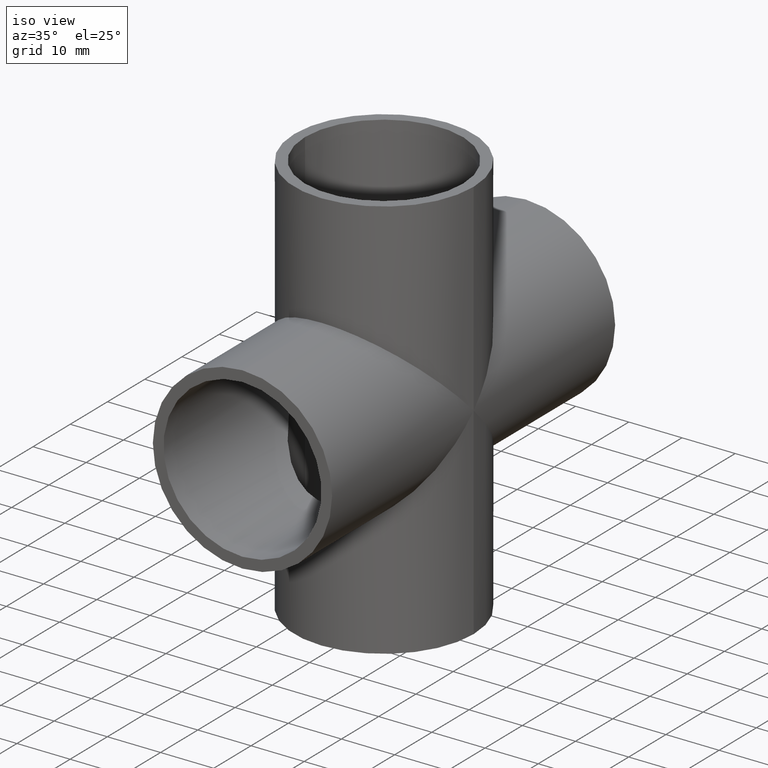
[diagram: clean part render]
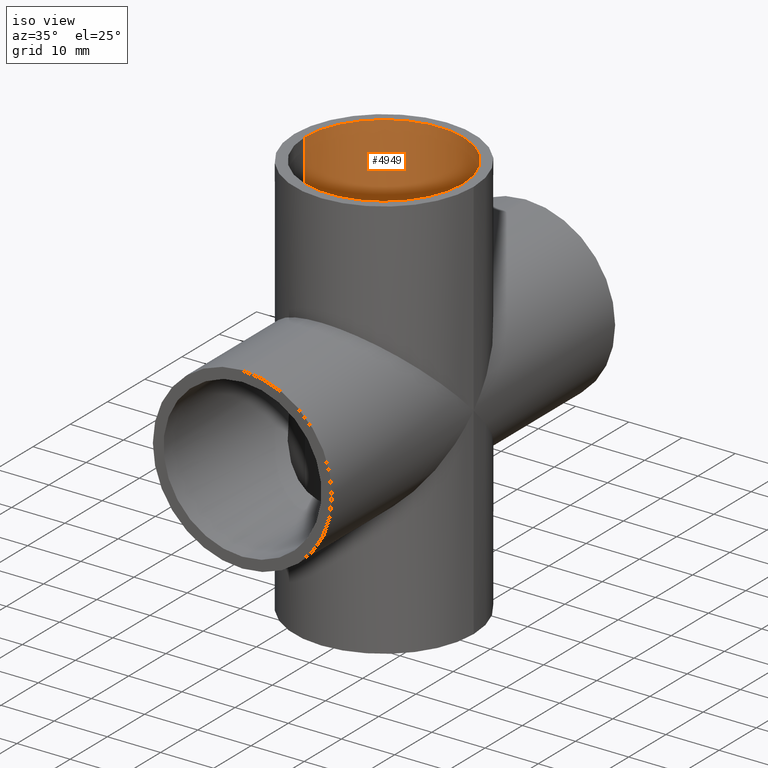
[diagram: same view with one face highlighted and labeled with its STEP entity id]
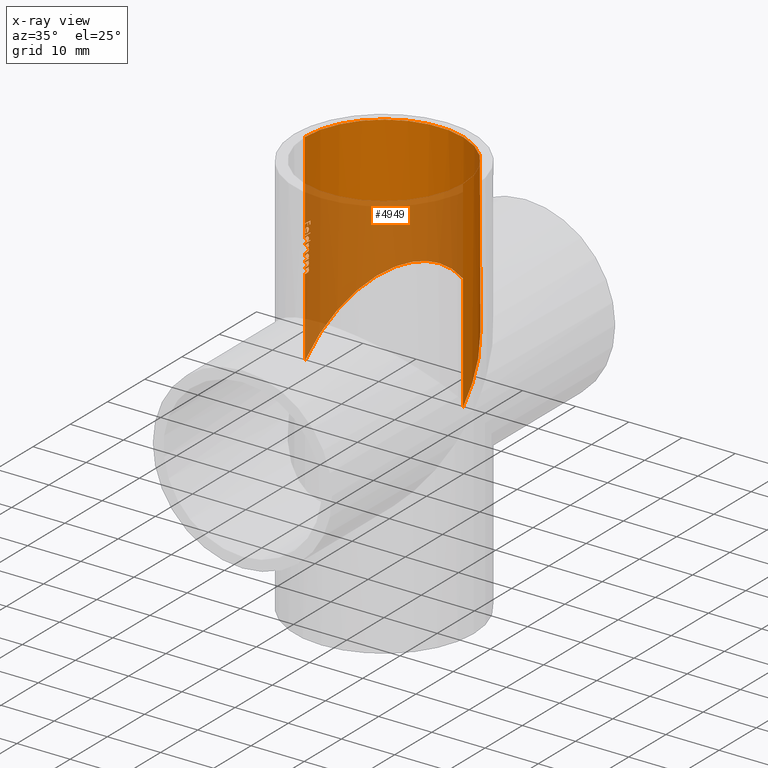
[diagram: x-ray of the same camera — body ghosted, the highlighted face saturated]
A machine part, iso view. The second image highlights one B-rep face of the part: STEP entity #4949.
The next image is the same camera in x-ray: the body ghosted, the highlighted face saturated — about 48% of this face is hidden behind the body in this view.
In plain terms, the highlighted cylindrical surface (partial cylindrical patch) has radius 14.85 mm, axis along (-0, -0, -1).
Its self-contained STEP definition (entity closure, byte-faithful):
#9 = B_SPLINE_CURVE_WITH_KNOTS ( 'NONE', 3,
 ( #1330, #8261, #4835, #10924, #5700, #492, #6581, #1367, #7442, #2256 ),
 .UNSPECIFIED., .F., .F.,
 ( 4, 2, 2, 2, 4 ),
 ( 0.0000000000000000000, 0.0001965589513312434300, 0.0003931179026624868700, 0.0005896768539937302500, 0.0007862358053249737400 ),
 .UNSPECIFIED. ) ;
#22 = AXIS2_PLACEMENT_3D ( 'NONE', #4942, #11021, #5803 ) ;
#26 = CARTESIAN_POINT ( 'NONE',  ( -14.81771691791065700, 0.9787134796757153100, 19.09783579280091100 ) ) ;
#99 = ORIENTED_EDGE ( 'NONE', *, *, #1311, .T. ) ;
#140 = CARTESIAN_POINT ( 'NONE',  ( -14.83668529800928000, 0.6309390085172752500, 18.17956725846610400 ) ) ;
#153 = AXIS2_PLACEMENT_3D ( 'NONE', #10857, #9996, #8236 ) ;
#163 = ORIENTED_EDGE ( 'NONE', *, *, #9550, .T. ) ;
#166 = VERTEX_POINT ( 'NONE', #6364 ) ;
#172 = LINE ( 'NONE', #6670, #6828 ) ;
#178 = CARTESIAN_POINT ( 'NONE',  ( -14.84798144149333500, 0.2462716403894106000, 21.68231437804901800 ) ) ;
#181 = CARTESIAN_POINT ( 'NONE',  ( -14.85000000000000300, -1.059576542428657800E-013, 21.83878693399580200 ) ) ;
#184 = EDGE_CURVE ( 'NONE', #2884, #5084, #6613, .T. ) ;
#256 = VERTEX_POINT ( 'NONE', #2986 ) ;
#269 = ORIENTED_EDGE ( 'NONE', *, *, #9200, .T. ) ;
#273 = EDGE_CURVE ( 'NONE', #2451, #8969, #8619, .T. ) ;
#287 = VECTOR ( 'NONE', #7656, 1000.000000000000000 ) ;
#348 = DIRECTION ( 'NONE',  ( 0.0000000000000000000, 0.0000000000000000000, -1.000000000000000000 ) ) ;
#358 = EDGE_CURVE ( 'NONE', #8838, #166, #2021, .T. ) ;
#368 = ORIENTED_EDGE ( 'NONE', *, *, #10534, .T. ) ;
#370 = CARTESIAN_POINT ( 'NONE',  ( -14.82055571170465500, 0.9346809061164503800, 19.36624015090812300 ) ) ;
#374 = LINE ( 'NONE', #1051, #9379 ) ;
#399 = CARTESIAN_POINT ( 'NONE',  ( -14.81745628764652700, 0.9825937151959409600, 22.01564065274810700 ) ) ;
#426 = LINE ( 'NONE', #2503, #9423 ) ;
#433 = ORIENTED_EDGE ( 'NONE', *, *, #2764, .T. ) ;
#444 = CARTESIAN_POINT ( 'NONE',  ( -14.84965132009372700, 0.1017628205128174200, 21.99696806557157900 ) ) ;
#448 = CARTESIAN_POINT ( 'NONE',  ( -14.81939740289145400, 0.9530090744142941700, 21.79465540906997500 ) ) ;
#451 = VERTEX_POINT ( 'NONE', #1987 ) ;
#478 = LINE ( 'NONE', #10685, #2530 ) ;
#488 = LINE ( 'NONE', #8206, #4567 ) ;
#492 = CARTESIAN_POINT ( 'NONE',  ( -14.82366469037234300, 0.8852009637895823500, 17.74210161428453600 ) ) ;
#510 = EDGE_CURVE ( 'NONE', #7213, #7338, #3555, .T. ) ;
#513 = DIRECTION ( 'NONE',  ( 0.0000000000000000000, 0.0000000000000000000, -1.000000000000000000 ) ) ;
#516 = CIRCLE ( 'NONE', #4155, 14.85000000000000300 ) ;
#538 = VERTEX_POINT ( 'NONE', #9336 ) ;
#547 = VECTOR ( 'NONE', #8177, 1000.000000000000000 ) ;
#551 = VERTEX_POINT ( 'NONE', #3226 ) ;
#568 = CIRCLE ( 'NONE', #2134, 14.85000000000000300 ) ;
#612 = CARTESIAN_POINT ( 'NONE',  ( -14.79095640900397200, 1.322916666666663400, 22.63802083333333600 ) ) ;
#616 = CARTESIAN_POINT ( 'NONE',  ( -14.83759463062733600, 0.6095853991367500300, 15.80510663054828200 ) ) ;
#625 = CARTESIAN_POINT ( 'NONE',  ( -14.81849859582964700, 0.9667467948717926000, 16.65097489316239500 ) ) ;
#638 = CIRCLE ( 'NONE', #5102, 14.85000000000000300 ) ;
#653 = CARTESIAN_POINT ( 'NONE',  ( 0.0000000000000000000, 0.0000000000000000000, 18.17741720085470500 ) ) ;
#661 = ORIENTED_EDGE ( 'NONE', *, *, #3862, .F. ) ;
#663 = ORIENTED_EDGE ( 'NONE', *, *, #6085, .T. ) ;
#676 = CIRCLE ( 'NONE', #2217, 14.85000000000000300 ) ;
#681 = CARTESIAN_POINT ( 'NONE',  ( -14.82884508901972800, 0.7923719618055533600, 16.53225160256410600 ) ) ;
#682 = ORIENTED_EDGE ( 'NONE', *, *, #738, .T. ) ;
#689 = CARTESIAN_POINT ( 'NONE',  ( -14.82406457666452000, 0.8786233515067388700, 14.78105169161440100 ) ) ;
#700 = EDGE_CURVE ( 'NONE', #7338, #538, #1175, .T. ) ;
#703 = ORIENTED_EDGE ( 'NONE', *, *, #2774, .T. ) ;
#706 = B_SPLINE_CURVE_WITH_KNOTS ( 'NONE', 3,
 ( #4001, #10970, #5749, #1770, #7818, #2651, #8716, #3521, #9609, #4385 ),
 .UNSPECIFIED., .F., .F.,
 ( 4, 2, 2, 2, 4 ),
 ( 0.0001419623446613842100, 0.0002987059101451939300, 0.0004554494756290037100, 0.0006121930411128134800, 0.0007689366065966233100 ),
 .UNSPECIFIED. ) ;
#712 = CARTESIAN_POINT ( 'NONE',  ( 0.0000000000000000000, 0.0000000000000000000, 17.04106570512820800 ) ) ;
#718 = CARTESIAN_POINT ( 'NONE',  ( -14.78788327343272300, 1.356837606837603800, 21.14549946581195900 ) ) ;
#738 = EDGE_CURVE ( 'NONE', #7863, #4592, #9469, .T. ) ;
#826 = CARTESIAN_POINT ( 'NONE',  ( -14.78788327343272300, 1.356837606837603800, 38.00000000000000000 ) ) ;
#829 = VECTOR ( 'NONE', #7320, 1000.000000000000000 ) ;
#838 = ORIENTED_EDGE ( 'NONE', *, *, #700, .T. ) ;
#843 = VERTEX_POINT ( 'NONE', #612 ) ;
#846 = CARTESIAN_POINT ( 'NONE',  ( -14.84293763543173800, 0.4579326923076892400, 22.34969284188033700 ) ) ;
#851 = EDGE_CURVE ( 'NONE', #962, #8273, #1702, .T. ) ;
#879 = VERTEX_POINT ( 'NONE', #10998 ) ;
#882 = CARTESIAN_POINT ( 'NONE',  ( -14.82011998020098400, 0.9417880345156028900, 19.00015126005442700 ) ) ;
#904 = CARTESIAN_POINT ( 'NONE',  ( 0.0000000000000000000, 0.0000000000000000000, 22.63802083333333600 ) ) ;
#910 = VERTEX_POINT ( 'NONE', #6867 ) ;
#912 = CARTESIAN_POINT ( 'NONE',  ( -14.84999999999999600, 8.698928598759536600, 8.698928598759536600 ) ) ;
#936 = CARTESIAN_POINT ( 'NONE',  ( -14.82169703216939500, 0.9165838171293188000, 19.39269035997474300 ) ) ;
#961 = DIRECTION ( 'NONE',  ( -1.000000000000000000, 0.0000000000000000000, 0.0000000000000000000 ) ) ;
#962 = VERTEX_POINT ( 'NONE', #10966 ) ;
#967 = VERTEX_POINT ( 'NONE', #11146 ) ;
#971 = CARTESIAN_POINT ( 'NONE',  ( -14.78788327343272300, 1.356837606837604000, 20.00914797008546800 ) ) ;
#994 = EDGE_CURVE ( 'NONE', #6882, #9248, #10153, .T. ) ;
#1012 = CARTESIAN_POINT ( 'NONE',  ( -14.84076433173453100, 0.5236545138888861800, 18.17741720085470500 ) ) ;
#1018 = AXIS2_PLACEMENT_3D ( 'NONE', #904, #6982, #1800 ) ;
#1022 = B_SPLINE_CURVE_WITH_KNOTS ( 'NONE', 3,
 ( #3485, #8681, #26, #6086, #882, #6966, #1778, #7825, #2655, #8724 ),
 .UNSPECIFIED., .F., .F.,
 ( 4, 2, 2, 2, 4 ),
 ( 0.0000000000000000000, 0.0001033324095261346400, 0.0002066648190522693500, 0.0003099972285784040400, 0.0004133296381045388100 ),
 .UNSPECIFIED. ) ;
#1023 = CARTESIAN_POINT ( 'NONE',  ( -14.81738236048697000, 0.9837072649572625700, 17.43221654647435800 ) ) ;
#1025 = CARTESIAN_POINT ( 'NONE',  ( 14.84999999999999600, 8.698928598759541900, 8.698928598759541900 ) ) ;
#1027 = CARTESIAN_POINT ( 'NONE',  ( -14.85000000000000300, 5.591600545147459700E-012, 17.57039110364007300 ) ) ;
#1033 = CARTESIAN_POINT ( 'NONE',  ( 0.0000000000000000000, 0.0000000000000000000, 19.89042467948717900 ) ) ;
#1042 = VERTEX_POINT ( 'NONE', #5758 ) ;
#1044 = B_SPLINE_CURVE_WITH_KNOTS ( 'NONE', 3,
 ( #8506, #7642, #9420, #4189, #10290, #5065, #11155, #5925 ),
 .UNSPECIFIED., .F., .F.,
 ( 4, 2, 2, 4 ),
 ( 0.0000000000000000000, 0.0002160255291713667300, 0.0003240382937570546700, 0.0004320510583427425600 ),
 .UNSPECIFIED. ) ;
#1046 = CARTESIAN_POINT ( 'NONE',  ( -14.84686158604745600, 0.3052884615384585100, 21.64106320112179600 ) ) ;
#1051 = CARTESIAN_POINT ( 'NONE',  ( -14.85000000000000300, 0.0000000000000000000, 38.00000000000000000 ) ) ;
#1058 = ORIENTED_EDGE ( 'NONE', *, *, #10756, .T. ) ;
#1096 = EDGE_CURVE ( 'NONE', #4658, #1912, #9877, .T. ) ;
#1110 = LINE ( 'NONE', #8276, #8032 ) ;
#1175 = B_SPLINE_CURVE_WITH_KNOTS ( 'NONE', 3,
 ( #7409, #5636, #4843, #9986, #6546, #10027, #1301, #2263, #4764, #4803 ),
 .UNSPECIFIED., .F., .F.,
 ( 4, 2, 2, 2, 4 ),
 ( 0.0000000000000000000, 0.0001141459166132042800, 0.0002282918332264085600, 0.0003424377498396128300, 0.0004565836664528171300 ),
 .UNSPECIFIED. ) ;
#1213 = VERTEX_POINT ( 'NONE', #444 ) ;
#1229 = VERTEX_POINT ( 'NONE', #625 ) ;
#1237 = EDGE_CURVE ( 'NONE', #1383, #967, #9062, .T. ) ;
#1301 = CARTESIAN_POINT ( 'NONE',  ( -14.82322414252354100, 0.8917403687946228200, 20.11429828834048200 ) ) ;
#1311 = EDGE_CURVE ( 'NONE', #5619, #3133, #4148, .T. ) ;
#1317 = CARTESIAN_POINT ( 'NONE',  ( -14.82276646138836400, 0.8992652006020607200, 21.69562250495362600 ) ) ;
#1330 = CARTESIAN_POINT ( 'NONE',  ( -14.84204437352709500, 0.4860234708867496300, 17.93997061965812300 ) ) ;
#1342 = ORIENTED_EDGE ( 'NONE', *, *, #10691, .T. ) ;
#1367 = CARTESIAN_POINT ( 'NONE',  ( -14.81817229716847700, 0.9720442346934808900, 17.56507784154603500 ) ) ;
#1383 = VERTEX_POINT ( 'NONE', #4929 ) ;
#1411 = CARTESIAN_POINT ( 'NONE',  ( -14.82034175107325100, 0.9382989406307527000, 18.68385460161149300 ) ) ;
#1417 = CARTESIAN_POINT ( 'NONE',  ( -14.82949144892297100, 0.7801816239316207200, 23.16379540598290600 ) ) ;
#1477 = ORIENTED_EDGE ( 'NONE', *, *, #7535, .T. ) ;
#1490 = CARTESIAN_POINT ( 'NONE',  ( -14.84179071862447300, 0.4937086838942286200, 15.80295138888889300 ) ) ;
#1496 = B_SPLINE_CURVE_WITH_KNOTS ( 'NONE', 3,
 ( #6821, #1619, #9465, #4245, #10334, #5116 ),
 .UNSPECIFIED., .F., .F.,
 ( 4, 2, 4 ),
 ( 0.0000000000000000000, 0.0001746643561381025600, 0.0003493287122762051300 ),
 .UNSPECIFIED. ) ;
#1528 = CARTESIAN_POINT ( 'NONE',  ( -14.81745345683504800, 0.9826363551332635300, 15.01598673453678500 ) ) ;
#1530 = DIRECTION ( 'NONE',  ( 1.000000000000000000, 0.0000000000000000000, 0.0000000000000000000 ) ) ;
#1534 = DIRECTION ( 'NONE',  ( -0.0000000000000000000, -0.0000000000000000000, -1.000000000000000000 ) ) ;
#1542 = B_SPLINE_CURVE_WITH_KNOTS ( 'NONE', 3,
 ( #10007, #9139, #10870, #5654, #448, #6524, #1317, #7392, #2208, #8246 ),
 .UNSPECIFIED., .F., .F.,
 ( 4, 2, 2, 2, 4 ),
 ( 0.0000000000000000000, 0.0001126937669705291100, 0.0002253875339410582100, 0.0003380813009115873200, 0.0004507750678821164200 ),
 .UNSPECIFIED. ) ;
#1556 = CARTESIAN_POINT ( 'NONE',  ( -14.82269523193042300, 0.9007352063472812100, 15.31628609098718400 ) ) ;
#1564 = B_SPLINE_CURVE_WITH_KNOTS ( 'NONE', 3,
 ( #370, #6451, #7322, #2133, #8189, #3014 ),
 .UNSPECIFIED., .F., .F.,
 ( 4, 2, 4 ),
 ( 0.0000000000000000000, 0.0001038474901770825800, 0.0002076949803541651600 ),
 .UNSPECIFIED. ) ;
#1566 = CARTESIAN_POINT ( 'NONE',  ( -14.83242695124243600, 0.7245132971305859900, 14.70254022854533600 ) ) ;
#1584 = DIRECTION ( 'NONE',  ( -1.000000000000000000, 0.0000000000000000000, 0.0000000000000000000 ) ) ;
#1592 = CARTESIAN_POINT ( 'NONE',  ( -14.84838798572572700, 0.2229708740200236900, 17.87126757309418300 ) ) ;
#1612 = VERTEX_POINT ( 'NONE', #10032 ) ;
#1614 = CARTESIAN_POINT ( 'NONE',  ( -14.85000000000000300, 5.482509371925565400E-012, 20.53847336859692500 ) ) ;
#1619 = CARTESIAN_POINT ( 'NONE',  ( -14.84033054563691700, 0.5389667437229556100, 22.46684625643071000 ) ) ;
#1630 = AXIS2_PLACEMENT_3D ( 'NONE', #6184, #10831, #6955 ) ;
#1632 = CARTESIAN_POINT ( 'NONE',  ( -14.81849859582964700, 0.9667467948717923800, 17.04106570512820800 ) ) ;
#1640 = CARTESIAN_POINT ( 'NONE',  ( -14.82772793592845800, 0.8156428696521471600, 18.82300874708702300 ) ) ;
#1647 = CIRCLE ( 'NONE', #22, 14.85000000000000300 ) ;
#1649 = LINE ( 'NONE', #9786, #8573 ) ;
#1702 = LINE ( 'NONE', #7557, #6311 ) ;
#1718 = VERTEX_POINT ( 'NONE', #10895 ) ;
#1719 = CARTESIAN_POINT ( 'NONE',  ( 0.0000000000000000000, 0.0000000000000000000, 19.50033386752137300 ) ) ;
#1758 = CARTESIAN_POINT ( 'NONE',  ( -14.81738236048697000, 0.9837072649572625700, 19.16695462740385400 ) ) ;
#1764 = EDGE_CURVE ( 'NONE', #1718, #6665, #9860, .T. ) ;
#1770 = CARTESIAN_POINT ( 'NONE',  ( -14.84970891654255400, 0.09803987164862589000, 22.30890720781552600 ) ) ;
#1776 = VERTEX_POINT ( 'NONE', #8792 ) ;
#1778 = CARTESIAN_POINT ( 'NONE',  ( -14.82424808607433600, 0.8746680145643988000, 18.92048624314636700 ) ) ;
#1800 = DIRECTION ( 'NONE',  ( 1.000000000000000000, 0.0000000000000000000, 0.0000000000000000000 ) ) ;
#1810 = DIRECTION ( 'NONE',  ( 0.0000000000000000000, 0.0000000000000000000, 1.000000000000000000 ) ) ;
#1832 = CARTESIAN_POINT ( 'NONE',  ( -14.82710596034722500, 0.8246843718788554600, 19.48145814240434600 ) ) ;
#1862 = CARTESIAN_POINT ( 'NONE',  ( -14.81738236048697000, 0.9837072649572624600, 18.50470127203525900 ) ) ;
#1872 = EDGE_CURVE ( 'NONE', #7524, #256, #4678, .T. ) ;
#1876 = CARTESIAN_POINT ( 'NONE',  ( 1.818600496733819600E-015, 14.84999999999999800, 14.85000000000000000 ) ) ;
#1904 = CARTESIAN_POINT ( 'NONE',  ( -14.85000000000000300, 0.0000000000000000000, 38.00000000000000000 ) ) ;
#1912 = VERTEX_POINT ( 'NONE', #2721 ) ;
#1916 = CARTESIAN_POINT ( 'NONE',  ( -14.81943662323866700, 0.9524033217935934400, 17.24544103569863300 ) ) ;
#1927 = ORIENTED_EDGE ( 'NONE', *, *, #5045, .T. ) ;
#1987 = CARTESIAN_POINT ( 'NONE',  ( -14.81849859582964700, 0.9667467948717923800, 16.92234241452991800 ) ) ;
#2004 = VERTEX_POINT ( 'NONE', #6069 ) ;
#2010 = CIRCLE ( 'NONE', #8822, 14.85000000000000300 ) ;
#2019 = CARTESIAN_POINT ( 'NONE',  ( 0.0000000000000000000, 0.0000000000000000000, 21.26422275641025200 ) ) ;
#2020 = ORIENTED_EDGE ( 'NONE', *, *, #1096, .T. ) ;
#2021 = B_SPLINE_CURVE_WITH_KNOTS ( 'NONE', 3,
 ( #2854, #1640, #2106, #1411, #2113, #6799, #6293, #6298 ),
 .UNSPECIFIED., .F., .F.,
 ( 4, 2, 2, 4 ),
 ( 0.0000000000000000000, 0.0002224528379482905800, 0.0003336792569224400000, 0.0004449056758965895600 ),
 .UNSPECIFIED. ) ;
#2050 = CARTESIAN_POINT ( 'NONE',  ( -14.82949144892297100, 0.7801816239316207200, 38.00000000000000000 ) ) ;
#2059 = DIRECTION ( 'NONE',  ( -0.0000000000000000000, -0.0000000000000000000, -1.000000000000000000 ) ) ;
#2062 = VECTOR ( 'NONE', #2436, 1000.000000000000000 ) ;
#2095 = CARTESIAN_POINT ( 'NONE',  ( 0.0000000000000000000, 0.0000000000000000000, 23.16379540598290600 ) ) ;
#2106 = CARTESIAN_POINT ( 'NONE',  ( -14.82420544779945400, 0.8758829395572481600, 18.77593616636736900 ) ) ;
#2113 = CARTESIAN_POINT ( 'NONE',  ( -14.81923710101001000, 0.9554275765915871700, 18.64991124645702700 ) ) ;
#2132 = CARTESIAN_POINT ( 'NONE',  ( -14.85000000000000300, 0.0000000000000000000, 38.00000000000000000 ) ) ;
#2133 = CARTESIAN_POINT ( 'NONE',  ( -14.81765313214225100, 0.9796549527232745200, 19.23574979823029500 ) ) ;
#2134 = AXIS2_PLACEMENT_3D ( 'NONE', #1719, #7773, #2599 ) ;
#2153 = VERTEX_POINT ( 'NONE', #9490 ) ;
#2159 = ORIENTED_EDGE ( 'NONE', *, *, #4561, .T. ) ;
#2160 = VERTEX_POINT ( 'NONE', #6771 ) ;
#2175 = ORIENTED_EDGE ( 'NONE', *, *, #4667, .T. ) ;
#2208 = CARTESIAN_POINT ( 'NONE',  ( -14.82721935898363700, 0.8227566329815080300, 21.61371083909693200 ) ) ;
#2217 = AXIS2_PLACEMENT_3D ( 'NONE', #8223, #3056, #9153 ) ;
#2256 = CARTESIAN_POINT ( 'NONE',  ( -14.81738236048697000, 0.9837072649572625700, 17.43221654647435800 ) ) ;
#2263 = CARTESIAN_POINT ( 'NONE',  ( -14.82625337588878300, 0.8398724300613779100, 20.05702507953843400 ) ) ;
#2269 = EDGE_CURVE ( 'NONE', #1612, #6946, #172, .T. ) ;
#2288 =( BOUNDED_CURVE ( )  B_SPLINE_CURVE ( 3, ( #2684, #912, #3561, #9646 ),
 .UNSPECIFIED., .F., .F. ) 
 B_SPLINE_CURVE_WITH_KNOTS ( ( 4, 4 ),
 ( 1.570796326794896600, 3.141592653589793100 ),
 .UNSPECIFIED. ) 
 CURVE ( )  GEOMETRIC_REPRESENTATION_ITEM ( )  RATIONAL_B_SPLINE_CURVE ( ( 1.000000000000000000, 0.8047378541243649400, 0.8047378541243649400, 1.000000000000000000 ) ) 
 REPRESENTATION_ITEM ( '' )  );
#2293 = VECTOR ( 'NONE', #1534, 1000.000000000000000 ) ;
#2310 = CARTESIAN_POINT ( 'NONE',  ( -14.81738236048697000, 0.9837072649572627900, 16.16442140758547600 ) ) ;
#2326 = ORIENTED_EDGE ( 'NONE', *, *, #9743, .T. ) ;
#2345 = CARTESIAN_POINT ( 'NONE',  ( -14.81745345683505700, 0.9826363551332635300, 16.13537776017781800 ) ) ;
#2350 = CIRCLE ( 'NONE', #5620, 14.85000000000000300 ) ;
#2367 = CARTESIAN_POINT ( 'NONE',  ( -14.82886377015004200, 0.7933567200301945300, 20.80478846092954000 ) ) ;
#2394 = EDGE_CURVE ( 'NONE', #1042, #7385, #10659, .T. ) ;
#2402 = CARTESIAN_POINT ( 'NONE',  ( -14.84179071862447300, 0.4937086838942287300, 14.68356036324786600 ) ) ;
#2436 = DIRECTION ( 'NONE',  ( -0.0000000000000000000, -0.0000000000000000000, -1.000000000000000000 ) ) ;
#2437 = CARTESIAN_POINT ( 'NONE',  ( -14.81872209733560600, 0.9633503297511070200, 15.18697594175998200 ) ) ;
#2440 = ORIENTED_EDGE ( 'NONE', *, *, #851, .T. ) ;
#2448 = CARTESIAN_POINT ( 'NONE',  ( -14.83986131953284400, 0.5517099677785000100, 14.68373087861353300 ) ) ;
#2450 = CARTESIAN_POINT ( 'NONE',  ( -14.84789712475049400, 0.2499019264155951900, 21.53559027777777500 ) ) ;
#2451 = VERTEX_POINT ( 'NONE', #9731 ) ;
#2453 = CARTESIAN_POINT ( 'NONE',  ( -14.84076433173453100, 0.5236545138888861800, 18.17741720085470500 ) ) ;
#2476 = CARTESIAN_POINT ( 'NONE',  ( -14.84293763543173800, 0.4579326923076892400, 38.00000000000000000 ) ) ;
#2479 = CARTESIAN_POINT ( 'NONE',  ( -14.84534379738500200, 0.3754116861903463200, 17.93203432389399800 ) ) ;
#2487 = ORIENTED_EDGE ( 'NONE', *, *, #8347, .T. ) ;
#2491 = AXIS2_PLACEMENT_3D ( 'NONE', #3890, #9995, #4773 ) ;
#2499 = DIRECTION ( 'NONE',  ( -0.0000000000000000000, -0.0000000000000000000, -1.000000000000000000 ) ) ;
#2503 = CARTESIAN_POINT ( 'NONE',  ( 14.85000000000000300, 1.818600496733819900E-015, 38.00000000000000000 ) ) ;
#2509 = DIRECTION ( 'NONE',  ( 0.0000000000000000000, 0.0000000000000000000, 1.000000000000000000 ) ) ;
#2530 = VECTOR ( 'NONE', #2499, 1000.000000000000000 ) ;
#2549 = EDGE_CURVE ( 'NONE', #9042, #9263, #10124, .T. ) ;
#2564 = ORIENTED_EDGE ( 'NONE', *, *, #4690, .T. ) ;
#2576 = CARTESIAN_POINT ( 'NONE',  ( -14.84437734188227300, 0.4112675962846081300, 22.34756094597151200 ) ) ;
#2599 = DIRECTION ( 'NONE',  ( 1.000000000000000000, 0.0000000000000000000, 0.0000000000000000000 ) ) ;
#2613 = CARTESIAN_POINT ( 'NONE',  ( -14.84745060127338900, 0.2785694411113987500, 22.30756706528233800 ) ) ;
#2617 = CARTESIAN_POINT ( 'NONE',  ( -14.83886269494858800, 0.5778257830556999800, 21.49273087857381300 ) ) ;
#2651 = CARTESIAN_POINT ( 'NONE',  ( -14.84835856931801400, 0.2249981619949888700, 22.40509531386880200 ) ) ;
#2655 = CARTESIAN_POINT ( 'NONE',  ( -14.82937925511650700, 0.7829987656347772200, 18.87108025228201700 ) ) ;
#2673 = CARTESIAN_POINT ( 'NONE',  ( -14.81738236048697000, 0.9837072649572625700, 17.43221654647435800 ) ) ;
#2677 = VECTOR ( 'NONE', #8858, 1000.000000000000000 ) ;
#2684 = CARTESIAN_POINT ( 'NONE',  ( -14.85000000000000300, 0.0000000000000000000, 0.0000000000000000000 ) ) ;
#2707 = ORIENTED_EDGE ( 'NONE', *, *, #3542, .T. ) ;
#2721 = CARTESIAN_POINT ( 'NONE',  ( -14.83600763360106400, 0.6444978632478599600, 23.16379540598290600 ) ) ;
#2745 = CARTESIAN_POINT ( 'NONE',  ( -14.81755690573854000, 0.9810932228485962400, 18.45120079969694200 ) ) ;
#2747 = CARTESIAN_POINT ( 'NONE',  ( -14.84888863157531500, 0.1909916509139706900, 21.56880156874764500 ) ) ;
#2764 = EDGE_CURVE ( 'NONE', #11172, #4983, #4108, .T. ) ;
#2774 = EDGE_CURVE ( 'NONE', #7620, #10021, #6739, .T. ) ;
#2778 = CARTESIAN_POINT ( 'NONE',  ( -14.84965132009372700, 0.1017628205128174200, 21.99696806557157900 ) ) ;
#2787 = CARTESIAN_POINT ( 'NONE',  ( -14.82287018720078500, 0.8975781756465172100, 17.14535562319002800 ) ) ;
#2854 = CARTESIAN_POINT ( 'NONE',  ( -14.83103658728869300, 0.7502357939369630500, 18.85928109975962000 ) ) ;
#2884 = VERTEX_POINT ( 'NONE', #7499 ) ;
#2889 = LINE ( 'NONE', #2132, #829 ) ;
#2902 = DIRECTION ( 'NONE',  ( -1.000000000000000000, 0.0000000000000000000, 0.0000000000000000000 ) ) ;
#2966 = DIRECTION ( 'NONE',  ( 1.000000000000000000, 0.0000000000000000000, 0.0000000000000000000 ) ) ;
#2974 = ORIENTED_EDGE ( 'NONE', *, *, #9401, .T. ) ;
#2986 = CARTESIAN_POINT ( 'NONE',  ( -14.85000000000000300, 5.482509371925565400E-012, 20.53847336859692500 ) ) ;
#3002 = CARTESIAN_POINT ( 'NONE',  ( -14.82824615730478800, 0.8035022702991422300, 22.35711304754273200 ) ) ;
#3014 = CARTESIAN_POINT ( 'NONE',  ( -14.81738236048697000, 0.9837072649572625700, 19.16695462740385400 ) ) ;
#3056 = DIRECTION ( 'NONE',  ( 0.0000000000000000000, 0.0000000000000000000, -1.000000000000000000 ) ) ;
#3057 = CARTESIAN_POINT ( 'NONE',  ( -14.84293763543173800, 0.4579326923076892400, 22.34969284188033700 ) ) ;
#3088 = ORIENTED_EDGE ( 'NONE', *, *, #3736, .T. ) ;
#3093 = CARTESIAN_POINT ( 'NONE',  ( -14.81738236048697000, 0.9837072649572622400, 20.40029881143162200 ) ) ;
#3102 = DIRECTION ( 'NONE',  ( -0.0000000000000000000, -0.0000000000000000000, -1.000000000000000000 ) ) ;
#3122 = VERTEX_POINT ( 'NONE', #9405 ) ;
#3133 = VERTEX_POINT ( 'NONE', #4285 ) ;
#3146 = LINE ( 'NONE', #10674, #547 ) ;
#3162 = AXIS2_PLACEMENT_3D ( 'NONE', #2095, #8143, #2966 ) ;
#3204 = CARTESIAN_POINT ( 'NONE',  ( -14.81756529496737900, 0.9809681316727404400, 16.10643644981108500 ) ) ;
#3226 = CARTESIAN_POINT ( 'NONE',  ( -14.85000000000000300, -2.298964014476537400E-015, 16.65097489316239500 ) ) ;
#3286 = CIRCLE ( 'NONE', #9143, 14.85000000000000300 ) ;
#3307 = CARTESIAN_POINT ( 'NONE',  ( -14.81746004185627400, 0.9825371662986129900, 15.08125151295283200 ) ) ;
#3340 = CARTESIAN_POINT ( 'NONE',  ( -14.84204437352709500, 0.4860234708867496300, 17.93997061965812300 ) ) ;
#3343 = DIRECTION ( 'NONE',  ( -0.0000000000000000000, -0.0000000000000000000, -1.000000000000000000 ) ) ;
#3353 = DIRECTION ( 'NONE',  ( 0.0000000000000000000, 0.0000000000000000000, 1.000000000000000000 ) ) ;
#3360 = CARTESIAN_POINT ( 'NONE',  ( -14.84838798572572900, 0.2229708740198784700, 20.83934983805136900 ) ) ;
#3478 = CARTESIAN_POINT ( 'NONE',  ( -14.84904877377636000, 0.1714114410278432800, 22.21629083559924600 ) ) ;
#3481 = CARTESIAN_POINT ( 'NONE',  ( -14.84293763543173800, 0.4579326923076892400, 21.48470886752136600 ) ) ;
#3484 = EDGE_CURVE ( 'NONE', #4217, #910, #2889, .T. ) ;
#3485 = CARTESIAN_POINT ( 'NONE',  ( -14.81738236048697000, 0.9837072649572625700, 19.16695462740385400 ) ) ;
#3504 = CARTESIAN_POINT ( 'NONE',  ( 0.0000000000000000000, 0.0000000000000000000, 16.92234241452991800 ) ) ;
#3521 = CARTESIAN_POINT ( 'NONE',  ( -14.84537963888377200, 0.3737913567863360700, 22.46093729278887400 ) ) ;
#3526 = ORIENTED_EDGE ( 'NONE', *, *, #5300, .T. ) ;
#3542 = EDGE_CURVE ( 'NONE', #11243, #10597, #9297, .T. ) ;
#3555 = B_SPLINE_CURVE_WITH_KNOTS ( 'NONE', 3,
 ( #3988, #5730, #10015, #4865, #2367, #7435, #4057, #7399, #10127, #10987 ),
 .UNSPECIFIED., .F., .F.,
 ( 4, 2, 2, 2, 4 ),
 ( 0.0000000000000000000, 0.0001965589513312450900, 0.0003931179026624901800, 0.0005896768539937352400, 0.0007862358053249803500 ),
 .UNSPECIFIED. ) ;
#3561 = CARTESIAN_POINT ( 'NONE',  ( -8.698928598759540200, 14.84999999999999600, 14.84999999999999600 ) ) ;
#3618 = CARTESIAN_POINT ( 'NONE',  ( -14.81899403636036500, 0.9592068199825242200, 18.37375451980819800 ) ) ;
#3659 = CARTESIAN_POINT ( 'NONE',  ( -14.82747772145620500, 0.8181212203606506000, 17.06442873312991900 ) ) ;
#3697 = DIRECTION ( 'NONE',  ( -0.0000000000000000000, -0.0000000000000000000, -1.000000000000000000 ) ) ;
#3709 = DIRECTION ( 'NONE',  ( 1.000000000000000000, 0.0000000000000000000, 0.0000000000000000000 ) ) ;
#3731 = CARTESIAN_POINT ( 'NONE',  ( -14.81738236048697000, 0.9837072649572627900, 16.16442140758547600 ) ) ;
#3736 = EDGE_CURVE ( 'NONE', #1912, #8668, #10235, .T. ) ;
#3775 = ORIENTED_EDGE ( 'NONE', *, *, #8602, .T. ) ;
#3806 = AXIS2_PLACEMENT_3D ( 'NONE', #10158, #4939, #11017 ) ;
#3849 = CARTESIAN_POINT ( 'NONE',  ( -14.85000000000000300, -2.298964014476537400E-015, 15.80295138888888900 ) ) ;
#3857 = EDGE_CURVE ( 'NONE', #256, #7213, #9147, .T. ) ;
#3862 = EDGE_CURVE ( 'NONE', #879, #5680, #426, .T. ) ;
#3865 = CARTESIAN_POINT ( 'NONE',  ( -14.82243082416872300, 0.9047551434220565400, 22.25339871720254700 ) ) ;
#3890 = CARTESIAN_POINT ( 'NONE',  ( 0.0000000000000000000, 0.0000000000000000000, 22.63802083333333600 ) ) ;
#3965 = CARTESIAN_POINT ( 'NONE',  ( -14.81849859582964700, 0.9667467948717921600, 19.61905715811966300 ) ) ;
#3988 = CARTESIAN_POINT ( 'NONE',  ( -14.84204437352709500, 0.4860234708867493000, 20.90805288461538300 ) ) ;
#4001 = CARTESIAN_POINT ( 'NONE',  ( -14.85000000000000300, 7.828930290377155900E-012, 22.12338389103445400 ) ) ;
#4047 = DIRECTION ( 'NONE',  ( 0.0000000000000000000, 0.0000000000000000000, 1.000000000000000000 ) ) ;
#4052 = CARTESIAN_POINT ( 'NONE',  ( -14.84789712475049400, 0.2499019264155951900, 21.53559027777777500 ) ) ;
#4057 = CARTESIAN_POINT ( 'NONE',  ( -14.82129896977318700, 0.9231452060062849100, 20.65420558516301600 ) ) ;
#4070 = EDGE_CURVE ( 'NONE', #910, #2153, #1647, .T. ) ;
#4075 = CARTESIAN_POINT ( 'NONE',  ( -14.81906320409103200, 0.9581453885371680200, 16.02227664453321800 ) ) ;
#4108 = LINE ( 'NONE', #2050, #8727 ) ;
#4111 = CARTESIAN_POINT ( 'NONE',  ( -14.85000000000000300, -2.470848832577394900E-015, 16.92234241452991800 ) ) ;
#4148 = CIRCLE ( 'NONE', #1630, 14.85000000000000300 ) ;
#4155 = AXIS2_PLACEMENT_3D ( 'NONE', #6993, #1810, #7856 ) ;
#4165 = ORIENTED_EDGE ( 'NONE', *, *, #9101, .T. ) ;
#4172 = LINE ( 'NONE', #9445, #8796 ) ;
#4189 = CARTESIAN_POINT ( 'NONE',  ( -14.81954057898083100, 0.9507873004000437800, 16.34068115090676800 ) ) ;
#4201 = ORIENTED_EDGE ( 'NONE', *, *, #3484, .T. ) ;
#4211 = CARTESIAN_POINT ( 'NONE',  ( 14.85000000000000000, 0.0000000000000000000, -9.093002483669097800E-016 ) ) ;
#4217 = VERTEX_POINT ( 'NONE', #6859 ) ;
#4236 = CARTESIAN_POINT ( 'NONE',  ( -14.84534379738500200, 0.3754116861902725400, 20.90011658885126900 ) ) ;
#4245 = CARTESIAN_POINT ( 'NONE',  ( -14.83330120532343700, 0.7061451852776734500, 22.42196455649219200 ) ) ;
#4285 = CARTESIAN_POINT ( 'NONE',  ( -14.85000000000000300, -2.145661338873071200E-015, 14.68356036324786400 ) ) ;
#4287 = EDGE_CURVE ( 'NONE', #6561, #8838, #1022, .T. ) ;
#4289 = DIRECTION ( 'NONE',  ( -0.0000000000000000000, -0.0000000000000000000, -1.000000000000000000 ) ) ;
#4323 = CARTESIAN_POINT ( 'NONE',  ( -14.82055571170465500, 0.9346809061164503800, 19.36624015090812300 ) ) ;
#4335 = CARTESIAN_POINT ( 'NONE',  ( -14.84960604542621200, 0.1095653305158823100, 22.09077941816270000 ) ) ;
#4354 = ORIENTED_EDGE ( 'NONE', *, *, #2269, .T. ) ;
#4358 = CARTESIAN_POINT ( 'NONE',  ( -14.85000000000000300, -2.928434091575620100E-015, 21.26422275641025200 ) ) ;
#4367 = DIRECTION ( 'NONE',  ( 1.000000000000000000, 0.0000000000000000000, 0.0000000000000000000 ) ) ;
#4385 = CARTESIAN_POINT ( 'NONE',  ( -14.84221698688497400, 0.4807233239850396400, 22.46841613247863000 ) ) ;
#4391 = VERTEX_POINT ( 'NONE', #9702 ) ;
#4469 = CARTESIAN_POINT ( 'NONE',  ( -14.82379684818495300, 0.8830203771508080600, 18.26327735255490100 ) ) ;
#4471 = CARTESIAN_POINT ( 'NONE',  ( -14.85000000000000300, -2.928434091575620100E-015, 21.14549946581195900 ) ) ;
#4489 = DIRECTION ( 'NONE',  ( 0.0000000000000000000, 0.0000000000000000000, 1.000000000000000000 ) ) ;
#4513 = CARTESIAN_POINT ( 'NONE',  ( -14.84956098835884600, 0.1192456002325987500, 21.85327132120987800 ) ) ;
#4518 = CARTESIAN_POINT ( 'NONE',  ( -14.84944078158862100, 0.1360327755783592400, 21.60693425569405300 ) ) ;
#4544 = ORIENTED_EDGE ( 'NONE', *, *, #4794, .T. ) ;
#4561 = EDGE_CURVE ( 'NONE', #1229, #1042, #1110, .T. ) ;
#4567 = VECTOR ( 'NONE', #9121, 1000.000000000000000 ) ;
#4592 = VERTEX_POINT ( 'NONE', #3965 ) ;
#4602 = ORIENTED_EDGE ( 'NONE', *, *, #358, .T. ) ;
#4605 = CARTESIAN_POINT ( 'NONE',  ( -14.85000000000000300, -2.877333199707798000E-015, 19.89042467948717900 ) ) ;
#4627 = DIRECTION ( 'NONE',  ( 0.0000000000000000000, 0.0000000000000000000, -1.000000000000000000 ) ) ;
#4658 = VERTEX_POINT ( 'NONE', #7560 ) ;
#4667 = EDGE_CURVE ( 'NONE', #5508, #5619, #5359, .T. ) ;
#4678 = LINE ( 'NONE', #5598, #4944 ) ;
#4690 = EDGE_CURVE ( 'NONE', #7606, #2451, #568, .T. ) ;
#4737 = LINE ( 'NONE', #8150, #9103 ) ;
#4742 = CARTESIAN_POINT ( 'NONE',  ( -14.81928270380092800, 0.9547756179497695100, 22.15771061223720300 ) ) ;
#4762 = CARTESIAN_POINT ( 'NONE',  ( 0.0000000000000000000, 0.0000000000000000000, 21.14549946581195900 ) ) ;
#4764 = CARTESIAN_POINT ( 'NONE',  ( -14.82792227195268400, 0.8100286489021204500, 20.03278930647366700 ) ) ;
#4773 = DIRECTION ( 'NONE',  ( 1.000000000000000000, 0.0000000000000000000, 0.0000000000000000000 ) ) ;
#4794 = EDGE_CURVE ( 'NONE', #6946, #6882, #2350, .T. ) ;
#4803 = CARTESIAN_POINT ( 'NONE',  ( -14.82951932357240400, 0.7796516092414500500, 20.00914797008546800 ) ) ;
#4835 = CARTESIAN_POINT ( 'NONE',  ( -14.83726364143219800, 0.6178931504983326000, 17.92795898192958900 ) ) ;
#4843 = CARTESIAN_POINT ( 'NONE',  ( -14.81762780128603500, 0.9800418278523830300, 20.32373226875064600 ) ) ;
#4850 = CIRCLE ( 'NONE', #2491, 14.85000000000000300 ) ;
#4865 = CARTESIAN_POINT ( 'NONE',  ( -14.83171675053304900, 0.7391634073437629600, 20.84387851557080800 ) ) ;
#4929 = CARTESIAN_POINT ( 'NONE',  ( -14.81849859582964700, 0.9667467948717927100, 15.41286057692307700 ) ) ;
#4939 = DIRECTION ( 'NONE',  ( 0.0000000000000000000, 0.0000000000000000000, 1.000000000000000000 ) ) ;
#4942 = CARTESIAN_POINT ( 'NONE',  ( 0.0000000000000000000, 0.0000000000000000000, 23.28251869658119600 ) ) ;
#4944 = VECTOR ( 'NONE', #9116, 1000.000000000000000 ) ;
#4949 = ADVANCED_FACE ( 'NONE', ( #6409 ), #10498, .F. ) ;
#4955 = CARTESIAN_POINT ( 'NONE',  ( -14.82406457666452000, 0.8786233515067319900, 15.90044271725541600 ) ) ;
#4982 = LINE ( 'NONE', #1904, #2677 ) ;
#4983 = VERTEX_POINT ( 'NONE', #10898 ) ;
#5013 = CARTESIAN_POINT ( 'NONE',  ( -14.82884508901972800, 0.7923719618055534700, 15.41286057692307800 ) ) ;
#5024 = CARTESIAN_POINT ( 'NONE',  ( -14.81839287687279100, 0.9683864376501697400, 14.93074648184295800 ) ) ;
#5045 = EDGE_CURVE ( 'NONE', #8738, #2160, #7903, .T. ) ;
#5059 = VERTEX_POINT ( 'NONE', #4111 ) ;
#5065 = CARTESIAN_POINT ( 'NONE',  ( -14.81763941927533400, 0.9798624884298299300, 16.23681104704843400 ) ) ;
#5068 = EDGE_CURVE ( 'NONE', #10341, #962, #3286, .T. ) ;
#5084 = VERTEX_POINT ( 'NONE', #2450 ) ;
#5102 = AXIS2_PLACEMENT_3D ( 'NONE', #4762, #10848, #5634 ) ;
#5108 = CARTESIAN_POINT ( 'NONE',  ( -14.84204437352709500, 0.4860234708867493000, 20.90805288461538300 ) ) ;
#5110 = CIRCLE ( 'NONE', #10285, 14.85000000000000300 ) ;
#5116 = CARTESIAN_POINT ( 'NONE',  ( -14.82824615730478800, 0.8035022702991422300, 22.35711304754273200 ) ) ;
#5127 = ORIENTED_EDGE ( 'NONE', *, *, #10159, .T. ) ;
#5226 = CARTESIAN_POINT ( 'NONE',  ( -14.84965132009372700, 0.1017628205128174200, 21.99696806557157900 ) ) ;
#5234 = VECTOR ( 'NONE', #10790, 1000.000000000000000 ) ;
#5235 = B_SPLINE_CURVE_WITH_KNOTS ( 'NONE', 3,
 ( #5013, #9338, #1556, #7626, #2437, #8492, #3307, #9403 ),
 .UNSPECIFIED., .F., .F.,
 ( 4, 2, 2, 4 ),
 ( 8.673617379884035500E-019, 0.0002160255291713762100, 0.0003240382937570637800, 0.0004320510583427512900 ),
 .UNSPECIFIED. ) ;
#5273 = ORIENTED_EDGE ( 'NONE', *, *, #2549, .T. ) ;
#5276 = VERTEX_POINT ( 'NONE', #10424 ) ;
#5300 = EDGE_CURVE ( 'NONE', #10478, #9042, #10441, .T. ) ;
#5306 = ORIENTED_EDGE ( 'NONE', *, *, #8252, .T. ) ;
#5334 = CARTESIAN_POINT ( 'NONE',  ( 0.0000000000000000000, 0.0000000000000000000, 15.41286057692307800 ) ) ;
#5351 = CARTESIAN_POINT ( 'NONE',  ( -14.83179840970631200, 0.7369332388125976500, 18.19469609101015100 ) ) ;
#5354 = CARTESIAN_POINT ( 'NONE',  ( -14.84789712475049400, 0.2499019264155951900, 21.53559027777777500 ) ) ;
#5359 = B_SPLINE_CURVE_WITH_KNOTS ( 'NONE', 3,
 ( #10249, #1528, #9381, #5024, #11108, #5891, #689, #6764, #1566, #7639, #2448, #8502 ),
 .UNSPECIFIED., .F., .F.,
 ( 4, 2, 2, 2, 2, 4 ),
 ( 0.0000000000000000000, 8.642778438451256000E-005, 0.0001728555687690252000, 0.0003457111375380458000, 0.0005185667063070664700, 0.0006914222750760871500 ),
 .UNSPECIFIED. ) ;
#5361 = EDGE_CURVE ( 'NONE', #3133, #3122, #1649, .T. ) ;
#5362 = CARTESIAN_POINT ( 'NONE',  ( -14.81760063281153000, 0.9804468801335337600, 17.35610783304413800 ) ) ;
#5368 = CARTESIAN_POINT ( 'NONE',  ( -14.80246526856089100, 1.187232905982902800, 38.00000000000000000 ) ) ;
#5382 = CARTESIAN_POINT ( 'NONE',  ( 0.0000000000000000000, 0.0000000000000000000, 19.61905715811966300 ) ) ;
#5387 = CARTESIAN_POINT ( 'NONE',  ( -14.84876599771351900, 0.1932639462946179900, 21.73032140741171500 ) ) ;
#5391 = CARTESIAN_POINT ( 'NONE',  ( -14.85000000000000300, 0.01693519543410083500, 21.77316210230796000 ) ) ;
#5504 = VECTOR ( 'NONE', #10751, 1000.000000000000000 ) ;
#5508 = VERTEX_POINT ( 'NONE', #10843 ) ;
#5547 = AXIS2_PLACEMENT_3D ( 'NONE', #7682, #2509, #8561 ) ;
#5558 = AXIS2_PLACEMENT_3D ( 'NONE', #5382, #4627, #961 ) ;
#5566 = CARTESIAN_POINT ( 'NONE',  ( 0.0000000000000000000, 0.0000000000000000000, 20.00914797008546800 ) ) ;
#5598 = CARTESIAN_POINT ( 'NONE',  ( -14.85000000000000300, 0.0000000000000000000, 38.00000000000000000 ) ) ;
#5611 = CARTESIAN_POINT ( 'NONE',  ( -14.81758637849343400, 0.9806559181119798300, 22.05205758702123800 ) ) ;
#5619 = VERTEX_POINT ( 'NONE', #2402 ) ;
#5620 = AXIS2_PLACEMENT_3D ( 'NONE', #2019, #8075, #2902 ) ;
#5632 = EDGE_CURVE ( 'NONE', #4391, #1383, #9289, .T. ) ;
#5634 = DIRECTION ( 'NONE',  ( 1.000000000000000000, 0.0000000000000000000, 0.0000000000000000000 ) ) ;
#5636 = CARTESIAN_POINT ( 'NONE',  ( -14.81745886788698200, 0.9825548495591802700, 20.36189947156549400 ) ) ;
#5654 = CARTESIAN_POINT ( 'NONE',  ( -14.81863259975076600, 0.9647226518976912400, 21.83010722481660800 ) ) ;
#5680 = VERTEX_POINT ( 'NONE', #4211 ) ;
#5700 = CARTESIAN_POINT ( 'NONE',  ( -14.82886377015004900, 0.7933567200301839800, 17.83670619597226200 ) ) ;
#5717 = CARTESIAN_POINT ( 'NONE',  ( 0.0000000000000000000, 0.0000000000000000000, 15.53158386752136800 ) ) ;
#5730 = CARTESIAN_POINT ( 'NONE',  ( -14.83987937801108200, 0.5521374786289440200, 20.90618981534336400 ) ) ;
#5749 = CARTESIAN_POINT ( 'NONE',  ( -14.84998926116512100, 0.03585618157166663800, 22.22350014180715800 ) ) ;
#5758 = CARTESIAN_POINT ( 'NONE',  ( -14.81849859582964700, 0.9667467948717926000, 16.53225160256410600 ) ) ;
#5793 = EDGE_CURVE ( 'NONE', #1213, #2884, #10947, .T. ) ;
#5802 = ORIENTED_EDGE ( 'NONE', *, *, #273, .T. ) ;
#5803 = DIRECTION ( 'NONE',  ( -1.000000000000000000, 0.0000000000000000000, 0.0000000000000000000 ) ) ;
#5807 = ORIENTED_EDGE ( 'NONE', *, *, #8073, .T. ) ;
#5822 = CARTESIAN_POINT ( 'NONE',  ( -14.83242695124243000, 0.7245132971305854300, 15.82193125418634600 ) ) ;
#5891 = CARTESIAN_POINT ( 'NONE',  ( -14.82160154456248300, 0.9183327196081660900, 14.82603360212541900 ) ) ;
#5914 = CARTESIAN_POINT ( 'NONE',  ( -14.85000000000000300, 5.591600545147459700E-012, 17.57039110364007300 ) ) ;
#5925 = CARTESIAN_POINT ( 'NONE',  ( -14.81738236048697000, 0.9837072649572627900, 16.16442140758547600 ) ) ;
#5950 = ORIENTED_EDGE ( 'NONE', *, *, #5361, .T. ) ;
#5952 = CARTESIAN_POINT ( 'NONE',  ( -14.85000000000000300, -3.211811764660815900E-015, 23.16379540598290600 ) ) ;
#6069 = CARTESIAN_POINT ( 'NONE',  ( -14.82878840888097800, 0.7934319911858942500, 21.58991678352029500 ) ) ;
#6071 = EDGE_CURVE ( 'NONE', #10342, #11172, #9148, .T. ) ;
#6085 = EDGE_CURVE ( 'NONE', #8240, #7620, #1496, .T. ) ;
#6086 = CARTESIAN_POINT ( 'NONE',  ( -14.81911340624074600, 0.9573361936175887000, 19.03172690733689600 ) ) ;
#6092 = CARTESIAN_POINT ( 'NONE',  ( -14.84758638093799900, 0.2683647379121123500, 21.57074912455104300 ) ) ;
#6097 = CIRCLE ( 'NONE', #10585, 14.85000000000000300 ) ;
#6164 = EDGE_CURVE ( 'NONE', #2004, #11243, #8608, .T. ) ;
#6184 = CARTESIAN_POINT ( 'NONE',  ( 0.0000000000000000000, 0.0000000000000000000, 14.68356036324786400 ) ) ;
#6187 = CARTESIAN_POINT ( 'NONE',  ( -14.84204437352709500, 0.4860234708867496300, 17.93997061965812300 ) ) ;
#6202 = CARTESIAN_POINT ( 'NONE',  ( -14.83886857795225500, 0.5773816075499442800, 18.17767878842214200 ) ) ;
#6214 = CARTESIAN_POINT ( 'NONE',  ( -14.81745205158476600, 0.9826575221324124200, 17.39410396170978900 ) ) ;
#6226 = DIRECTION ( 'NONE',  ( 0.0000000000000000000, 0.0000000000000000000, 1.000000000000000000 ) ) ;
#6237 = CARTESIAN_POINT ( 'NONE',  ( -14.84686158604745600, 0.3052884615384585100, 21.64106320112179600 ) ) ;
#6248 = CARTESIAN_POINT ( 'NONE',  ( -14.84747573825946000, 0.2754208640590051800, 21.66110820989168300 ) ) ;
#6293 = CARTESIAN_POINT ( 'NONE',  ( -14.81748031896797700, 0.9822317362911299200, 18.54226455426701000 ) ) ;
#6298 = CARTESIAN_POINT ( 'NONE',  ( -14.81738236048697000, 0.9837072649572624600, 18.50470127203525900 ) ) ;
#6311 = VECTOR ( 'NONE', #4289, 1000.000000000000000 ) ;
#6313 = CARTESIAN_POINT ( 'NONE',  ( -14.81738236048697000, 0.9837072649572620200, 21.97921257345085200 ) ) ;
#6330 = EDGE_CURVE ( 'NONE', #6665, #7863, #3146, .T. ) ;
#6344 = ORIENTED_EDGE ( 'NONE', *, *, #5632, .T. ) ;
#6362 = DIRECTION ( 'NONE',  ( -0.0000000000000000000, -0.0000000000000000000, -1.000000000000000000 ) ) ;
#6363 = ORIENTED_EDGE ( 'NONE', *, *, #9893, .T. ) ;
#6364 = CARTESIAN_POINT ( 'NONE',  ( -14.81738236048697000, 0.9837072649572624600, 18.50470127203525900 ) ) ;
#6409 = FACE_OUTER_BOUND ( 'NONE', #11261, .T. ) ;
#6436 = DIRECTION ( 'NONE',  ( -1.000000000000000000, 0.0000000000000000000, 0.0000000000000000000 ) ) ;
#6439 = CARTESIAN_POINT ( 'NONE',  ( -14.80246526856089100, 1.187232905982902800, 22.63802083333333600 ) ) ;
#6451 = CARTESIAN_POINT ( 'NONE',  ( -14.81961451382263600, 0.9496047967778423700, 19.33500934690291100 ) ) ;
#6481 = CARTESIAN_POINT ( 'NONE',  ( -14.81738236048697000, 0.9837072649572620200, 21.97921257345085200 ) ) ;
#6518 = ORIENTED_EDGE ( 'NONE', *, *, #10855, .T. ) ;
#6524 = CARTESIAN_POINT ( 'NONE',  ( -14.82145378344856300, 0.9204745655585662200, 21.72738856523586300 ) ) ;
#6546 = CARTESIAN_POINT ( 'NONE',  ( -14.81964807183490700, 0.9491300525205665900, 20.21275807409727000 ) ) ;
#6555 = EDGE_CURVE ( 'NONE', #451, #5059, #6097, .T. ) ;
#6556 = ORIENTED_EDGE ( 'NONE', *, *, #6330, .T. ) ;
#6561 = VERTEX_POINT ( 'NONE', #1758 ) ;
#6573 = AXIS2_PLACEMENT_3D ( 'NONE', #1033, #6226, #3709 ) ;
#6581 = CARTESIAN_POINT ( 'NONE',  ( -14.82129896977318500, 0.9231452060062960200, 17.68612332020575900 ) ) ;
#6595 = DIRECTION ( 'NONE',  ( -1.000000000000000000, 0.0000000000000000000, 0.0000000000000000000 ) ) ;
#6613 =( BOUNDED_CURVE ( )  B_SPLINE_CURVE ( 3, ( #6237, #11054, #6092, #4052 ),
 .UNSPECIFIED., .F., .T. ) 
 B_SPLINE_CURVE_WITH_KNOTS ( ( 4, 4 ),
 ( 4.691829386444375400, 4.695559773441846800 ),
 .UNSPECIFIED. ) 
 CURVE ( )  GEOMETRIC_REPRESENTATION_ITEM ( )  RATIONAL_B_SPLINE_CURVE ( ( 1.000000000000000000, 0.9999988403514068500, 0.9999988403514068500, 1.000000000000000000 ) ) 
 REPRESENTATION_ITEM ( '' )  );
#6630 = B_SPLINE_CURVE_WITH_KNOTS ( 'NONE', 3,
 ( #1862, #7912, #2745, #8814, #3618, #9708, #4469, #10567, #5351, #140, #6202, #1012 ),
 .UNSPECIFIED., .F., .F.,
 ( 4, 2, 2, 2, 2, 4 ),
 ( 0.0000000000000000000, 7.975843979979858000E-005, 0.0001595168795995971600, 0.0003190337591991850500, 0.0004785506387987730000, 0.0006380675183983608900 ),
 .UNSPECIFIED. ) ;
#6648 = VERTEX_POINT ( 'NONE', #10664 ) ;
#6665 = VERTEX_POINT ( 'NONE', #4605 ) ;
#6670 = CARTESIAN_POINT ( 'NONE',  ( -14.85000000000000300, 0.0000000000000000000, 38.00000000000000000 ) ) ;
#6679 = CARTESIAN_POINT ( 'NONE',  ( -14.85000000000000300, -2.705448381606942100E-015, 19.61905715811966300 ) ) ;
#6703 = CARTESIAN_POINT ( 'NONE',  ( -14.83986131953284000, 0.5517099677784981200, 15.80312190425456700 ) ) ;
#6730 = DIRECTION ( 'NONE',  ( 0.0000000000000000000, 0.0000000000000000000, 1.000000000000000000 ) ) ;
#6734 = CARTESIAN_POINT ( 'NONE',  ( -14.81849859582964700, 0.9667467948717921600, 38.00000000000000000 ) ) ;
#6737 = EDGE_CURVE ( 'NONE', #551, #1229, #676, .T. ) ;
#6739 = B_SPLINE_CURVE_WITH_KNOTS ( 'NONE', 3,
 ( #3002, #8097, #9924, #3865, #9959, #4742, #10828, #5611, #399, #6481 ),
 .UNSPECIFIED., .F., .F.,
 ( 4, 2, 2, 2, 4 ),
 ( 0.0000000000000000000, 0.0001087512082180158800, 0.0002175024164360317700, 0.0003262536246540476500, 0.0004350048328720636500 ),
 .UNSPECIFIED. ) ;
#6764 = CARTESIAN_POINT ( 'NONE',  ( -14.82950618455273300, 0.7814191508051291400, 14.71865038980121200 ) ) ;
#6770 = ORIENTED_EDGE ( 'NONE', *, *, #994, .T. ) ;
#6771 = CARTESIAN_POINT ( 'NONE',  ( -14.84179071862447300, 0.4937086838942286200, 15.80295138888889300 ) ) ;
#6781 = DIRECTION ( 'NONE',  ( 0.0000000000000000000, 0.0000000000000000000, -1.000000000000000000 ) ) ;
#6789 = CARTESIAN_POINT ( 'NONE',  ( -14.84994907137429700, 0.09423225992614972500, 17.77002172449271500 ) ) ;
#6799 = CARTESIAN_POINT ( 'NONE',  ( -14.81775184916595500, 0.9781923362008363400, 18.57936482793664700 ) ) ;
#6804 = CARTESIAN_POINT ( 'NONE',  ( -14.80246526856089100, 1.187232905982902800, 23.16379540598290600 ) ) ;
#6821 = CARTESIAN_POINT ( 'NONE',  ( -14.84221698688497400, 0.4807233239850396400, 22.46841613247863000 ) ) ;
#6828 = VECTOR ( 'NONE', #6917, 1000.000000000000000 ) ;
#6859 = CARTESIAN_POINT ( 'NONE',  ( -14.85000000000000300, 0.0000000000000000000, 38.00000000000000000 ) ) ;
#6867 = CARTESIAN_POINT ( 'NONE',  ( -14.85000000000000300, -3.211811764660815900E-015, 23.28251869658119600 ) ) ;
#6873 = CARTESIAN_POINT ( 'NONE',  ( -14.82850386827970400, 0.7987321380876041300, 19.50033386752137300 ) ) ;
#6882 = VERTEX_POINT ( 'NONE', #10166 ) ;
#6889 = CARTESIAN_POINT ( 'NONE',  ( -14.82878840888097800, 0.7934319911858942500, 21.58991678352029500 ) ) ;
#6917 = DIRECTION ( 'NONE',  ( -0.0000000000000000000, -0.0000000000000000000, -1.000000000000000000 ) ) ;
#6946 = VERTEX_POINT ( 'NONE', #4358 ) ;
#6955 = DIRECTION ( 'NONE',  ( 1.000000000000000000, 0.0000000000000000000, 0.0000000000000000000 ) ) ;
#6966 = CARTESIAN_POINT ( 'NONE',  ( -14.82266572274631300, 0.9008339476456603800, 18.94377690665254500 ) ) ;
#6982 = DIRECTION ( 'NONE',  ( 0.0000000000000000000, 0.0000000000000000000, 1.000000000000000000 ) ) ;
#6989 = B_SPLINE_CURVE_WITH_KNOTS ( 'NONE', 3,
 ( #5354, #2747, #4518, #10610, #5391, #181 ),
 .UNSPECIFIED., .F., .F.,
 ( 4, 2, 4 ),
 ( 0.0000000000000000000, 0.0002001846398949753100, 0.0004003692797899506200 ),
 .UNSPECIFIED. ) ;
#6993 = CARTESIAN_POINT ( 'NONE',  ( 0.0000000000000000000, 0.0000000000000000000, 38.00000000000000000 ) ) ;
#7083 = ORIENTED_EDGE ( 'NONE', *, *, #8003, .T. ) ;
#7100 = CARTESIAN_POINT ( 'NONE',  ( -14.81865325103429700, 0.9644067730324215000, 17.28128089807822900 ) ) ;
#7103 = CARTESIAN_POINT ( 'NONE',  ( 14.85000000000000000, 0.0000000000000000000, -9.093002483669097800E-016 ) ) ;
#7143 = ORIENTED_EDGE ( 'NONE', *, *, #2394, .T. ) ;
#7212 = VERTEX_POINT ( 'NONE', #3849 ) ;
#7213 = VERTEX_POINT ( 'NONE', #10815 ) ;
#7254 = CARTESIAN_POINT ( 'NONE',  ( -14.81849859582964700, 0.9667467948717921600, 19.50033386752137300 ) ) ;
#7278 = ORIENTED_EDGE ( 'NONE', *, *, #9942, .T. ) ;
#7320 = DIRECTION ( 'NONE',  ( -0.0000000000000000000, -0.0000000000000000000, -1.000000000000000000 ) ) ;
#7322 = CARTESIAN_POINT ( 'NONE',  ( -14.81873334237407400, 0.9631771895612432100, 19.30304055305209200 ) ) ;
#7332 = CARTESIAN_POINT ( 'NONE',  ( -14.82908513183641100, 0.7878668369391000900, 17.04106570512820800 ) ) ;
#7338 = VERTEX_POINT ( 'NONE', #3093 ) ;
#7385 = VERTEX_POINT ( 'NONE', #681 ) ;
#7392 = CARTESIAN_POINT ( 'NONE',  ( -14.82561351916779900, 0.8510389239880014100, 21.63861172368240600 ) ) ;
#7399 = CARTESIAN_POINT ( 'NONE',  ( -14.81817229716847700, 0.9720442346934863300, 20.53316010650331000 ) ) ;
#7409 = CARTESIAN_POINT ( 'NONE',  ( -14.81738236048697000, 0.9837072649572622400, 20.40029881143162200 ) ) ;
#7435 = CARTESIAN_POINT ( 'NONE',  ( -14.82366469037234100, 0.8852009637895642500, 20.71018387924178600 ) ) ;
#7442 = CARTESIAN_POINT ( 'NONE',  ( -14.81750853497832800, 0.9818067242687832400, 17.49858251359963600 ) ) ;
#7460 = ORIENTED_EDGE ( 'NONE', *, *, #8805, .T. ) ;
#7470 = ORIENTED_EDGE ( 'NONE', *, *, #6164, .T. ) ;
#7499 = CARTESIAN_POINT ( 'NONE',  ( -14.84686158604745600, 0.3052884615384585100, 21.64106320112179600 ) ) ;
#7504 = ORIENTED_EDGE ( 'NONE', *, *, #1237, .T. ) ;
#7515 = ORIENTED_EDGE ( 'NONE', *, *, #184, .T. ) ;
#7524 = VERTEX_POINT ( 'NONE', #4471 ) ;
#7535 = EDGE_CURVE ( 'NONE', #5084, #1612, #6989, .T. ) ;
#7557 = CARTESIAN_POINT ( 'NONE',  ( -14.85000000000000300, 0.0000000000000000000, 38.00000000000000000 ) ) ;
#7560 = CARTESIAN_POINT ( 'NONE',  ( -14.83600763360106400, 0.6444978632478599600, 22.63802083333333600 ) ) ;
#7574 = EDGE_CURVE ( 'NONE', #8668, #5276, #374, .T. ) ;
#7606 = VERTEX_POINT ( 'NONE', #7254 ) ;
#7617 = EDGE_CURVE ( 'NONE', #10778, #1718, #4737, .T. ) ;
#7620 = VERTEX_POINT ( 'NONE', #9928 ) ;
#7625 = CARTESIAN_POINT ( 'NONE',  ( -14.81849859582964700, 0.9667467948717927100, 38.00000000000000000 ) ) ;
#7626 = CARTESIAN_POINT ( 'NONE',  ( -14.81954057898083700, 0.9507873004000382300, 15.22129012526573400 ) ) ;
#7639 = CARTESIAN_POINT ( 'NONE',  ( -14.83759463062734300, 0.6095853991367516900, 14.68571560490725100 ) ) ;
#7642 = CARTESIAN_POINT ( 'NONE',  ( -14.82584006663186200, 0.8486094533205343900, 16.48717632200709500 ) ) ;
#7656 = DIRECTION ( 'NONE',  ( 0.0000000000000000000, 0.0000000000000000000, 1.000000000000000000 ) ) ;
#7660 = CARTESIAN_POINT ( 'NONE',  ( -14.84759557272967000, 0.2721619101634717400, 17.89791623897334500 ) ) ;
#7674 = CARTESIAN_POINT ( 'NONE',  ( -14.84999999999999100, 0.02765697352396749600, 20.64411635137750200 ) ) ;
#7682 = CARTESIAN_POINT ( 'NONE',  ( 0.0000000000000000000, 0.0000000000000000000, 23.16379540598290600 ) ) ;
#7773 = DIRECTION ( 'NONE',  ( 0.0000000000000000000, 0.0000000000000000000, 1.000000000000000000 ) ) ;
#7786 = CARTESIAN_POINT ( 'NONE',  ( -14.84556489865193100, 0.3655039407290107700, 22.34126704096729600 ) ) ;
#7788 = CARTESIAN_POINT ( 'NONE',  ( -14.83400628318944700, 0.6913655367437056000, 21.52653035162951100 ) ) ;
#7806 = CARTESIAN_POINT ( 'NONE',  ( -14.82292591854757200, 0.8966081957476842400, 19.41757300926314400 ) ) ;
#7818 = CARTESIAN_POINT ( 'NONE',  ( -14.84941850801386400, 0.1383703356795785200, 22.34489358779465800 ) ) ;
#7825 = CARTESIAN_POINT ( 'NONE',  ( -14.82761585627133100, 0.8155878076771105900, 18.88410827519882000 ) ) ;
#7856 = DIRECTION ( 'NONE',  ( 1.000000000000000000, 0.0000000000000000000, 0.0000000000000000000 ) ) ;
#7863 = VERTEX_POINT ( 'NONE', #6679 ) ;
#7872 = ORIENTED_EDGE ( 'NONE', *, *, #6071, .T. ) ;
#7903 = B_SPLINE_CURVE_WITH_KNOTS ( 'NONE', 3,
 ( #2310, #2345, #3204, #9318, #4075, #10176, #4955, #11037, #5822, #616, #6703, #1490 ),
 .UNSPECIFIED., .F., .F.,
 ( 4, 2, 2, 2, 2, 4 ),
 ( 3.529906531158615100E-018, 8.642778438451775100E-005, 0.0001728555687690319000, 0.0003457111375380600500, 0.0005185667063070881600, 0.0006914222750761163100 ),
 .UNSPECIFIED. ) ;
#7908 = ORIENTED_EDGE ( 'NONE', *, *, #510, .T. ) ;
#7912 = CARTESIAN_POINT ( 'NONE',  ( -14.81744946452028900, 0.9826964905582223900, 18.47790005647842900 ) ) ;
#7949 = CARTESIAN_POINT ( 'NONE',  ( -14.84964173583178500, 0.1031613956242911100, 21.92485811653745000 ) ) ;
#7960 = CARTESIAN_POINT ( 'NONE',  ( -14.82152272896427400, 0.9193682136915898300, 17.17740552790921500 ) ) ;
#7972 = EDGE_CURVE ( 'NONE', #879, #4217, #516, .T. ) ;
#7980 = EDGE_CURVE ( 'NONE', #3122, #6648, #2288, .T. ) ;
#7991 = ORIENTED_EDGE ( 'NONE', *, *, #10337, .T. ) ;
#8003 = EDGE_CURVE ( 'NONE', #4592, #7606, #8953, .T. ) ;
#8032 = VECTOR ( 'NONE', #3102, 1000.000000000000000 ) ;
#8073 = EDGE_CURVE ( 'NONE', #2160, #7212, #2010, .T. ) ;
#8075 = DIRECTION ( 'NONE',  ( 0.0000000000000000000, 0.0000000000000000000, -1.000000000000000000 ) ) ;
#8083 = CIRCLE ( 'NONE', #10647, 14.85000000000000300 ) ;
#8097 = CARTESIAN_POINT ( 'NONE',  ( -14.82673749769219300, 0.8313438544864674200, 22.33380123186576300 ) ) ;
#8141 = DIRECTION ( 'NONE',  ( -0.0000000000000000000, -0.0000000000000000000, -1.000000000000000000 ) ) ;
#8143 = DIRECTION ( 'NONE',  ( 0.0000000000000000000, 0.0000000000000000000, 1.000000000000000000 ) ) ;
#8150 = CARTESIAN_POINT ( 'NONE',  ( -14.78788327343272300, 1.356837606837604000, 38.00000000000000000 ) ) ;
#8158 = EDGE_CURVE ( 'NONE', #4983, #4658, #10722, .T. ) ;
#8177 = DIRECTION ( 'NONE',  ( -0.0000000000000000000, -0.0000000000000000000, -1.000000000000000000 ) ) ;
#8189 = CARTESIAN_POINT ( 'NONE',  ( -14.81746761010854000, 0.9824231672547405500, 19.20143961438789000 ) ) ;
#8206 = CARTESIAN_POINT ( 'NONE',  ( -14.81849859582964700, 0.9667467948717923800, 38.00000000000000000 ) ) ;
#8218 = CARTESIAN_POINT ( 'NONE',  ( -14.83103658728869300, 0.7502357939369630500, 18.85928109975962000 ) ) ;
#8223 = CARTESIAN_POINT ( 'NONE',  ( 0.0000000000000000000, 0.0000000000000000000, 16.65097489316239500 ) ) ;
#8236 = DIRECTION ( 'NONE',  ( -1.000000000000000000, 0.0000000000000000000, 0.0000000000000000000 ) ) ;
#8240 = VERTEX_POINT ( 'NONE', #10581 ) ;
#8246 = CARTESIAN_POINT ( 'NONE',  ( -14.82878840888097800, 0.7934319911858942500, 21.58991678352029500 ) ) ;
#8252 = EDGE_CURVE ( 'NONE', #10128, #10342, #10180, .T. ) ;
#8261 = CARTESIAN_POINT ( 'NONE',  ( -14.83987937801108500, 0.5521374786289416900, 17.93810755038607100 ) ) ;
#8273 = VERTEX_POINT ( 'NONE', #1027 ) ;
#8276 = CARTESIAN_POINT ( 'NONE',  ( -14.81849859582964700, 0.9667467948717926000, 38.00000000000000000 ) ) ;
#8347 = EDGE_CURVE ( 'NONE', #9248, #7524, #638, .T. ) ;
#8410 = ORIENTED_EDGE ( 'NONE', *, *, #3857, .T. ) ;
#8492 = CARTESIAN_POINT ( 'NONE',  ( -14.81763941927533600, 0.9798624884298317000, 15.11742002140741700 ) ) ;
#8502 = CARTESIAN_POINT ( 'NONE',  ( -14.84179071862447300, 0.4937086838942287300, 14.68356036324786600 ) ) ;
#8506 = CARTESIAN_POINT ( 'NONE',  ( -14.82884508901972800, 0.7923719618055533600, 16.53225160256410600 ) ) ;
#8528 = CARTESIAN_POINT ( 'NONE',  ( -14.84384881561418700, 0.4309199396164465900, 17.93848288981723700 ) ) ;
#8548 = CARTESIAN_POINT ( 'NONE',  ( 0.0000000000000000000, 0.0000000000000000000, 15.80295138888888900 ) ) ;
#8555 = CARTESIAN_POINT ( 'NONE',  ( -14.84994907137429700, 0.09423225992595882200, 20.73810398944977300 ) ) ;
#8561 = DIRECTION ( 'NONE',  ( 1.000000000000000000, 0.0000000000000000000, 0.0000000000000000000 ) ) ;
#8568 = ORIENTED_EDGE ( 'NONE', *, *, #7617, .T. ) ;
#8573 = VECTOR ( 'NONE', #3697, 1000.000000000000000 ) ;
#8594 = ORIENTED_EDGE ( 'NONE', *, *, #7972, .T. ) ;
#8602 = EDGE_CURVE ( 'NONE', #5059, #551, #4172, .T. ) ;
#8608 = B_SPLINE_CURVE_WITH_KNOTS ( 'NONE', 3,
 ( #6889, #9535, #7788, #2617, #8673, #3481 ),
 .UNSPECIFIED., .F., .F.,
 ( 4, 2, 4 ),
 ( 0.0000000000000000000, 0.0001794839247369620300, 0.0003589678494739240600 ),
 .UNSPECIFIED. ) ;
#8619 = B_SPLINE_CURVE_WITH_KNOTS ( 'NONE', 3,
 ( #6873, #1832, #10500, #7806, #936, #4323 ),
 .UNSPECIFIED., .F., .F.,
 ( 4, 2, 4 ),
 ( 0.0000000000000000000, 9.635322275479204600E-005, 0.0001927064455095840900 ),
 .UNSPECIFIED. ) ;
#8668 = VERTEX_POINT ( 'NONE', #5952 ) ;
#8671 = CARTESIAN_POINT ( 'NONE',  ( -14.84811990860377100, 0.2386766595813133700, 22.28202028694387900 ) ) ;
#8673 = CARTESIAN_POINT ( 'NONE',  ( -14.84109190587223500, 0.5177581845772126800, 21.48652389559018200 ) ) ;
#8681 = CARTESIAN_POINT ( 'NONE',  ( -14.81746053654677900, 0.9825297148761728000, 19.13215277963765400 ) ) ;
#8716 = CARTESIAN_POINT ( 'NONE',  ( -14.84756624022701400, 0.2734837162687375200, 22.42880377757055800 ) ) ;
#8724 = CARTESIAN_POINT ( 'NONE',  ( -14.83103658728869300, 0.7502357939369630500, 18.85928109975962000 ) ) ;
#8727 = VECTOR ( 'NONE', #8141, 1000.000000000000000 ) ;
#8738 = VERTEX_POINT ( 'NONE', #3731 ) ;
#8769 = DIRECTION ( 'NONE',  ( 1.000000000000000000, 0.0000000000000000000, 0.0000000000000000000 ) ) ;
#8787 = B_SPLINE_CURVE_WITH_KNOTS ( 'NONE', 3,
 ( #846, #2576, #7786, #2613, #8671, #3478, #9571, #4335, #10435, #5226 ),
 .UNSPECIFIED., .F., .F.,
 ( 4, 2, 2, 2, 4 ),
 ( 0.0000000000000000000, 0.0001382067550076855900, 0.0002764135100153711700, 0.0004146202650230567600, 0.0005528270200307423500 ),
 .UNSPECIFIED. ) ;
#8792 = CARTESIAN_POINT ( 'NONE',  ( -14.85000000000000300, -2.145661338873071200E-015, 15.53158386752136800 ) ) ;
#8796 = VECTOR ( 'NONE', #3343, 1000.000000000000000 ) ;
#8805 = EDGE_CURVE ( 'NONE', #8969, #6561, #1564, .T. ) ;
#8814 = CARTESIAN_POINT ( 'NONE',  ( -14.81835101002225000, 0.9690252372832424100, 18.39932693130446500 ) ) ;
#8822 = AXIS2_PLACEMENT_3D ( 'NONE', #8548, #3353, #9454 ) ;
#8838 = VERTEX_POINT ( 'NONE', #8218 ) ;
#8845 = AXIS2_PLACEMENT_3D ( 'NONE', #5334, #4047, #8769 ) ;
#8858 = DIRECTION ( 'NONE',  ( -0.0000000000000000000, -0.0000000000000000000, -1.000000000000000000 ) ) ;
#8869 = CARTESIAN_POINT ( 'NONE',  ( -14.82581325189751600, 0.8475780718392598200, 17.08873770214024600 ) ) ;
#8953 = LINE ( 'NONE', #6734, #2293 ) ;
#8969 = VERTEX_POINT ( 'NONE', #11167 ) ;
#9042 = VERTEX_POINT ( 'NONE', #7332 ) ;
#9062 = CIRCLE ( 'NONE', #8845, 14.85000000000000300 ) ;
#9065 = AXIS2_PLACEMENT_3D ( 'NONE', #712, #6781, #1584 ) ;
#9101 = EDGE_CURVE ( 'NONE', #9768, #10478, #9, .T. ) ;
#9103 = VECTOR ( 'NONE', #2059, 1000.000000000000000 ) ;
#9116 = DIRECTION ( 'NONE',  ( -0.0000000000000000000, -0.0000000000000000000, -1.000000000000000000 ) ) ;
#9121 = DIRECTION ( 'NONE',  ( -0.0000000000000000000, -0.0000000000000000000, -1.000000000000000000 ) ) ;
#9139 = CARTESIAN_POINT ( 'NONE',  ( -14.81744689901288600, 0.9827351342741651500, 21.94155815295469500 ) ) ;
#9143 = AXIS2_PLACEMENT_3D ( 'NONE', #653, #6730, #1530 ) ;
#9147 = B_SPLINE_CURVE_WITH_KNOTS ( 'NONE', 3,
 ( #1614, #7674, #8555, #3360, #9459, #4236, #10328, #5108 ),
 .UNSPECIFIED., .F., .F.,
 ( 4, 2, 2, 4 ),
 ( 0.0001354148065900380500, 0.0004617171256994760500, 0.0006248682852541951500, 0.0007880194448089141400 ),
 .UNSPECIFIED. ) ;
#9148 = CIRCLE ( 'NONE', #5547, 14.85000000000000300 ) ;
#9153 = DIRECTION ( 'NONE',  ( -1.000000000000000000, 0.0000000000000000000, 0.0000000000000000000 ) ) ;
#9200 = EDGE_CURVE ( 'NONE', #967, #5508, #5235, .T. ) ;
#9248 = VERTEX_POINT ( 'NONE', #718 ) ;
#9263 = VERTEX_POINT ( 'NONE', #1632 ) ;
#9266 = ORIENTED_EDGE ( 'NONE', *, *, #6737, .T. ) ;
#9289 = LINE ( 'NONE', #7625, #2062 ) ;
#9297 = LINE ( 'NONE', #2476, #287 ) ;
#9318 = CARTESIAN_POINT ( 'NONE',  ( -14.81839287687279400, 0.9683864376501660800, 16.05013750748397800 ) ) ;
#9324 = ORIENTED_EDGE ( 'NONE', *, *, #1872, .T. ) ;
#9336 = CARTESIAN_POINT ( 'NONE',  ( -14.82951932357240400, 0.7796516092414500500, 20.00914797008546800 ) ) ;
#9338 = CARTESIAN_POINT ( 'NONE',  ( -14.82584006663185900, 0.8486094533205411600, 15.36778529636607300 ) ) ;
#9379 = VECTOR ( 'NONE', #6362, 1000.000000000000000 ) ;
#9381 = CARTESIAN_POINT ( 'NONE',  ( -14.81756529496737500, 0.9809681316727406600, 14.98704542417006600 ) ) ;
#9401 = EDGE_CURVE ( 'NONE', #7212, #1776, #4982, .T. ) ;
#9403 = CARTESIAN_POINT ( 'NONE',  ( -14.81738236048697000, 0.9837072649572627900, 15.04503038194444600 ) ) ;
#9404 = CARTESIAN_POINT ( 'NONE',  ( -14.84999999999999400, 0.02765697352414347000, 17.67603408642057900 ) ) ;
#9405 = CARTESIAN_POINT ( 'NONE',  ( -14.85000000000000300, 0.0000000000000000000, 0.0000000000000000000 ) ) ;
#9420 = CARTESIAN_POINT ( 'NONE',  ( -14.82269523193042500, 0.9007352063472716700, 16.43567711662820600 ) ) ;
#9423 = VECTOR ( 'NONE', #11198, 1000.000000000000000 ) ;
#9445 = CARTESIAN_POINT ( 'NONE',  ( -14.85000000000000300, 0.0000000000000000000, 38.00000000000000000 ) ) ;
#9454 = DIRECTION ( 'NONE',  ( 1.000000000000000000, 0.0000000000000000000, 0.0000000000000000000 ) ) ;
#9459 = CARTESIAN_POINT ( 'NONE',  ( -14.84759557272967400, 0.2721619101633592800, 20.86599850393054100 ) ) ;
#9465 = CARTESIAN_POINT ( 'NONE',  ( -14.83808132931472700, 0.5973341905351485800, 22.45933878314595200 ) ) ;
#9469 = CIRCLE ( 'NONE', #5558, 14.85000000000000300 ) ;
#9490 = CARTESIAN_POINT ( 'NONE',  ( -14.79095640900397200, 1.322916666666663400, 23.28251869658119600 ) ) ;
#9495 =( BOUNDED_CURVE ( )  B_SPLINE_CURVE ( 3, ( #1876, #10579, #1025, #7103 ),
 .UNSPECIFIED., .F., .T. ) 
 B_SPLINE_CURVE_WITH_KNOTS ( ( 4, 4 ),
 ( 3.141592653589793100, 4.712388980384689700 ),
 .UNSPECIFIED. ) 
 CURVE ( )  GEOMETRIC_REPRESENTATION_ITEM ( )  RATIONAL_B_SPLINE_CURVE ( ( 1.000000000000000000, 0.8047378541243649400, 0.8047378541243649400, 1.000000000000000000 ) ) 
 REPRESENTATION_ITEM ( '' )  );
#9510 = ORIENTED_EDGE ( 'NONE', *, *, #7980, .T. ) ;
#9535 = CARTESIAN_POINT ( 'NONE',  ( -14.83137499541237700, 0.7450901738638308100, 21.55450189691734100 ) ) ;
#9550 = EDGE_CURVE ( 'NONE', #10021, #2004, #1542, .T. ) ;
#9571 = CARTESIAN_POINT ( 'NONE',  ( -14.84930767137726100, 0.1444504994320089400, 22.17724843511781800 ) ) ;
#9595 = DIRECTION ( 'NONE',  ( 0.0000000000000000000, 0.0000000000000000000, 1.000000000000000000 ) ) ;
#9609 = CARTESIAN_POINT ( 'NONE',  ( -14.84394538499679300, 0.4273594480601754000, 22.46689772064032900 ) ) ;
#9646 = CARTESIAN_POINT ( 'NONE',  ( 1.818600496733819600E-015, 14.84999999999999800, 14.85000000000000000 ) ) ;
#9702 = CARTESIAN_POINT ( 'NONE',  ( -14.81849859582964700, 0.9667467948717927100, 15.53158386752136800 ) ) ;
#9708 = CARTESIAN_POINT ( 'NONE',  ( -14.82142758289336700, 0.9211038474502427600, 18.30326312347244100 ) ) ;
#9731 = CARTESIAN_POINT ( 'NONE',  ( -14.82850386827970400, 0.7987321380876041300, 19.50033386752137300 ) ) ;
#9743 = EDGE_CURVE ( 'NONE', #10597, #1213, #8787, .T. ) ;
#9748 = CARTESIAN_POINT ( 'NONE',  ( -14.82908513183641100, 0.7878668369391000900, 17.04106570512820800 ) ) ;
#9768 = VERTEX_POINT ( 'NONE', #6187 ) ;
#9786 = CARTESIAN_POINT ( 'NONE',  ( -14.85000000000000300, 0.0000000000000000000, 38.00000000000000000 ) ) ;
#9826 = EDGE_CURVE ( 'NONE', #538, #10778, #5110, .T. ) ;
#9860 = CIRCLE ( 'NONE', #6573, 14.85000000000000300 ) ;
#9877 = LINE ( 'NONE', #10945, #5234 ) ;
#9893 = EDGE_CURVE ( 'NONE', #843, #10128, #4850, .T. ) ;
#9912 = EDGE_CURVE ( 'NONE', #9263, #451, #488, .T. ) ;
#9924 = CARTESIAN_POINT ( 'NONE',  ( -14.82518336397062200, 0.8584728484142331000, 22.30975549046770100 ) ) ;
#9928 = CARTESIAN_POINT ( 'NONE',  ( -14.82824615730478800, 0.8035022702991422300, 22.35711304754273200 ) ) ;
#9942 = EDGE_CURVE ( 'NONE', #5276, #8240, #706, .T. ) ;
#9955 = ORIENTED_EDGE ( 'NONE', *, *, #8158, .T. ) ;
#9959 = CARTESIAN_POINT ( 'NONE',  ( -14.82122776918204500, 0.9240907692601201300, 22.22302723807603500 ) ) ;
#9986 = CARTESIAN_POINT ( 'NONE',  ( -14.81876560169032500, 0.9626846233031765000, 20.24950129964272000 ) ) ;
#9995 = DIRECTION ( 'NONE',  ( 0.0000000000000000000, 0.0000000000000000000, 1.000000000000000000 ) ) ;
#9996 = DIRECTION ( 'NONE',  ( -0.0000000000000000000, -0.0000000000000000000, -1.000000000000000000 ) ) ;
#10007 = CARTESIAN_POINT ( 'NONE',  ( -14.81738236048697000, 0.9837072649572620200, 21.97921257345085200 ) ) ;
#10015 = CARTESIAN_POINT ( 'NONE',  ( -14.83726364143220500, 0.6178931504983326000, 20.89604124688684900 ) ) ;
#10021 = VERTEX_POINT ( 'NONE', #6313 ) ;
#10027 = CARTESIAN_POINT ( 'NONE',  ( -14.82188080352300800, 0.9136007201145995800, 20.14548661401950700 ) ) ;
#10032 = CARTESIAN_POINT ( 'NONE',  ( -14.85000000000000300, -1.059576542428657800E-013, 21.83878693399580200 ) ) ;
#10107 = ORIENTED_EDGE ( 'NONE', *, *, #7574, .T. ) ;
#10124 = CIRCLE ( 'NONE', #9065, 14.85000000000000300 ) ;
#10127 = CARTESIAN_POINT ( 'NONE',  ( -14.81750853497832800, 0.9818067242687819100, 20.46666477855689700 ) ) ;
#10128 = VERTEX_POINT ( 'NONE', #6439 ) ;
#10153 = LINE ( 'NONE', #826, #5504 ) ;
#10158 = CARTESIAN_POINT ( 'NONE',  ( 0.0000000000000000000, 0.0000000000000000000, 16.53225160256410600 ) ) ;
#10159 = EDGE_CURVE ( 'NONE', #1776, #4391, #8083, .T. ) ;
#10166 = CARTESIAN_POINT ( 'NONE',  ( -14.78788327343272300, 1.356837606837603800, 21.26422275641025200 ) ) ;
#10172 = CARTESIAN_POINT ( 'NONE',  ( -14.84293763543173800, 0.4579326923076892400, 21.48470886752136600 ) ) ;
#10176 = CARTESIAN_POINT ( 'NONE',  ( -14.82160154456247600, 0.9183327196081573200, 15.94542462776643500 ) ) ;
#10180 = LINE ( 'NONE', #5368, #10436 ) ;
#10223 = ORIENTED_EDGE ( 'NONE', *, *, #9826, .T. ) ;
#10235 = CIRCLE ( 'NONE', #3162, 14.85000000000000300 ) ;
#10249 = CARTESIAN_POINT ( 'NONE',  ( -14.81738236048697000, 0.9837072649572627900, 15.04503038194444600 ) ) ;
#10285 = AXIS2_PLACEMENT_3D ( 'NONE', #5566, #348, #6436 ) ;
#10290 = CARTESIAN_POINT ( 'NONE',  ( -14.81872209733560700, 0.9633503297511082400, 16.30636696740101100 ) ) ;
#10328 = CARTESIAN_POINT ( 'NONE',  ( -14.84384881561419300, 0.4309199396164113400, 20.90656515477450800 ) ) ;
#10334 = CARTESIAN_POINT ( 'NONE',  ( -14.83077712608530700, 0.7567944643833889300, 22.39189714406531100 ) ) ;
#10337 = EDGE_CURVE ( 'NONE', #7385, #8738, #1044, .T. ) ;
#10341 = VERTEX_POINT ( 'NONE', #2453 ) ;
#10342 = VERTEX_POINT ( 'NONE', #6804 ) ;
#10416 = ORIENTED_EDGE ( 'NONE', *, *, #1764, .T. ) ;
#10424 = CARTESIAN_POINT ( 'NONE',  ( -14.85000000000000300, 7.828930290377155900E-012, 22.12338389103445400 ) ) ;
#10435 = CARTESIAN_POINT ( 'NONE',  ( -14.84964376172389900, 0.1028657690746000300, 22.04391789228873900 ) ) ;
#10436 = VECTOR ( 'NONE', #4489, 1000.000000000000000 ) ;
#10441 = B_SPLINE_CURVE_WITH_KNOTS ( 'NONE', 3,
 ( #1023, #6214, #5362, #7100, #1916, #7960, #2787, #8869, #3659, #9748 ),
 .UNSPECIFIED., .F., .F.,
 ( 4, 2, 2, 2, 4 ),
 ( 0.0000000000000000000, 0.0001140836756504771700, 0.0002281673513009544600, 0.0003422510269514317100, 0.0004563347026019090200 ),
 .UNSPECIFIED. ) ;
#10478 = VERTEX_POINT ( 'NONE', #2673 ) ;
#10498 = CYLINDRICAL_SURFACE ( 'NONE', #153, 14.85000000000000300 ) ;
#10500 = CARTESIAN_POINT ( 'NONE',  ( -14.82565705917880400, 0.8502539662083948800, 19.46198835015563900 ) ) ;
#10534 = EDGE_CURVE ( 'NONE', #6648, #5680, #9495, .T. ) ;
#10567 = CARTESIAN_POINT ( 'NONE',  ( -14.82905409146611600, 0.7898308268823821500, 18.20832707746429000 ) ) ;
#10579 = CARTESIAN_POINT ( 'NONE',  ( 8.698928598759536600, 14.85000000000000100, 14.85000000000000100 ) ) ;
#10581 = CARTESIAN_POINT ( 'NONE',  ( -14.84221698688497400, 0.4807233239850396400, 22.46841613247863000 ) ) ;
#10585 = AXIS2_PLACEMENT_3D ( 'NONE', #3504, #9595, #4367 ) ;
#10597 = VERTEX_POINT ( 'NONE', #3057 ) ;
#10601 = ORIENTED_EDGE ( 'NONE', *, *, #4287, .T. ) ;
#10606 = CARTESIAN_POINT ( 'NONE',  ( -14.84902775022151800, 0.1707926760500241600, 21.75925347718170500 ) ) ;
#10610 = CARTESIAN_POINT ( 'NONE',  ( -14.84998321545360200, 0.04893815163290014100, 21.71159763477780300 ) ) ;
#10647 = AXIS2_PLACEMENT_3D ( 'NONE', #5717, #513, #6595 ) ;
#10659 = CIRCLE ( 'NONE', #3806, 14.85000000000000300 ) ;
#10664 = CARTESIAN_POINT ( 'NONE',  ( 1.818600496733819600E-015, 14.84999999999999800, 14.85000000000000000 ) ) ;
#10674 = CARTESIAN_POINT ( 'NONE',  ( -14.85000000000000300, 0.0000000000000000000, 38.00000000000000000 ) ) ;
#10681 = B_SPLINE_CURVE_WITH_KNOTS ( 'NONE', 3,
 ( #5914, #9404, #6789, #1592, #7660, #2479, #8528, #3340 ),
 .UNSPECIFIED., .F., .F.,
 ( 4, 2, 2, 4 ),
 ( 0.0001354148065904598600, 0.0004617171256996829200, 0.0006248682852542943600, 0.0007880194448089059000 ),
 .UNSPECIFIED. ) ;
#10685 = CARTESIAN_POINT ( 'NONE',  ( -14.79095640900397200, 1.322916666666663400, 38.00000000000000000 ) ) ;
#10691 = EDGE_CURVE ( 'NONE', #8273, #9768, #10681, .T. ) ;
#10722 = CIRCLE ( 'NONE', #1018, 14.85000000000000300 ) ;
#10751 = DIRECTION ( 'NONE',  ( -0.0000000000000000000, -0.0000000000000000000, -1.000000000000000000 ) ) ;
#10756 = EDGE_CURVE ( 'NONE', #166, #10341, #6630, .T. ) ;
#10778 = VERTEX_POINT ( 'NONE', #971 ) ;
#10790 = DIRECTION ( 'NONE',  ( 0.0000000000000000000, 0.0000000000000000000, 1.000000000000000000 ) ) ;
#10815 = CARTESIAN_POINT ( 'NONE',  ( -14.84204437352709500, 0.4860234708867493000, 20.90805288461538300 ) ) ;
#10828 = CARTESIAN_POINT ( 'NONE',  ( -14.81853282229661100, 0.9662489888016323500, 22.12271773829838000 ) ) ;
#10831 = DIRECTION ( 'NONE',  ( 0.0000000000000000000, 0.0000000000000000000, 1.000000000000000000 ) ) ;
#10843 = CARTESIAN_POINT ( 'NONE',  ( -14.81738236048697000, 0.9837072649572627900, 15.04503038194444600 ) ) ;
#10848 = DIRECTION ( 'NONE',  ( 0.0000000000000000000, 0.0000000000000000000, 1.000000000000000000 ) ) ;
#10850 = ORIENTED_EDGE ( 'NONE', *, *, #4070, .T. ) ;
#10855 = EDGE_CURVE ( 'NONE', #2153, #843, #478, .T. ) ;
#10857 = CARTESIAN_POINT ( 'NONE',  ( 0.0000000000000000000, 0.0000000000000000000, 38.00000000000000000 ) ) ;
#10870 = CARTESIAN_POINT ( 'NONE',  ( -14.81760186430544700, 0.9804269031460582900, 21.90403760087891900 ) ) ;
#10895 = CARTESIAN_POINT ( 'NONE',  ( -14.78788327343272300, 1.356837606837604000, 19.89042467948717900 ) ) ;
#10898 = CARTESIAN_POINT ( 'NONE',  ( -14.82949144892297100, 0.7801816239316207200, 22.63802083333333600 ) ) ;
#10924 = CARTESIAN_POINT ( 'NONE',  ( -14.83171675053304700, 0.7391634073437735000, 17.87579625061355400 ) ) ;
#10945 = CARTESIAN_POINT ( 'NONE',  ( -14.83600763360106400, 0.6444978632478599600, 38.00000000000000000 ) ) ;
#10947 = B_SPLINE_CURVE_WITH_KNOTS ( 'NONE', 3,
 ( #2778, #7949, #4513, #10606, #5387, #178, #6248, #1046 ),
 .UNSPECIFIED., .F., .F.,
 ( 4, 2, 2, 4 ),
 ( 0.0000000000000000000, 0.0002138398444362448400, 0.0003207597666543627100, 0.0004276796888724805800 ),
 .UNSPECIFIED. ) ;
#10966 = CARTESIAN_POINT ( 'NONE',  ( -14.85000000000000300, -2.705448381606942100E-015, 18.17741720085470500 ) ) ;
#10970 = CARTESIAN_POINT ( 'NONE',  ( -14.84999999999999800, 0.01317757669949750800, 22.17407139686222100 ) ) ;
#10987 = CARTESIAN_POINT ( 'NONE',  ( -14.81738236048697000, 0.9837072649572622400, 20.40029881143162200 ) ) ;
#10998 = CARTESIAN_POINT ( 'NONE',  ( 14.85000000000000300, 1.818600496733819900E-015, 38.00000000000000000 ) ) ;
#11017 = DIRECTION ( 'NONE',  ( 1.000000000000000000, 0.0000000000000000000, 0.0000000000000000000 ) ) ;
#11021 = DIRECTION ( 'NONE',  ( 0.0000000000000000000, 0.0000000000000000000, -1.000000000000000000 ) ) ;
#11037 = CARTESIAN_POINT ( 'NONE',  ( -14.82950618455273300, 0.7814191508051177000, 15.83804141544222300 ) ) ;
#11054 = CARTESIAN_POINT ( 'NONE',  ( -14.84724120097003200, 0.2868269376960619900, 21.60590680643626600 ) ) ;
#11061 = ORIENTED_EDGE ( 'NONE', *, *, #5793, .T. ) ;
#11108 = CARTESIAN_POINT ( 'NONE',  ( -14.81906320409103600, 0.9581453885371671300, 14.90288561889220300 ) ) ;
#11128 = ORIENTED_EDGE ( 'NONE', *, *, #6555, .T. ) ;
#11146 = CARTESIAN_POINT ( 'NONE',  ( -14.82884508901972800, 0.7923719618055534700, 15.41286057692307800 ) ) ;
#11151 = ORIENTED_EDGE ( 'NONE', *, *, #5068, .T. ) ;
#11155 = CARTESIAN_POINT ( 'NONE',  ( -14.81746004185627400, 0.9825371662986132100, 16.20064253859386800 ) ) ;
#11167 = CARTESIAN_POINT ( 'NONE',  ( -14.82055571170465500, 0.9346809061164503800, 19.36624015090812300 ) ) ;
#11172 = VERTEX_POINT ( 'NONE', #1417 ) ;
#11198 = DIRECTION ( 'NONE',  ( -0.0000000000000000000, -0.0000000000000000000, -1.000000000000000000 ) ) ;
#11243 = VERTEX_POINT ( 'NONE', #10172 ) ;
#11261 = EDGE_LOOP ( 'NONE', ( #661, #8594, #4201, #10850, #6518, #6363, #5306, #7872, #433, #9955, #2020, #3088, #10107, #7278, #663, #703, #163, #7470, #2707, #2326, #11061, #7515, #1477, #4354, #4544, #6770, #2487, #9324, #8410, #7908, #838, #10223, #8568, #10416, #6556, #682, #7083, #2564, #5802, #7460, #10601, #4602, #1058, #11151, #2440, #1342, #4165, #3526, #5273, #11268, #11128, #3775, #9266, #2159, #7143, #7991, #1927, #5807, #2974, #5127, #6344, #7504, #269, #2175, #99, #5950, #9510, #368 ) ) ;
#11268 = ORIENTED_EDGE ( 'NONE', *, *, #9912, .T. ) ;